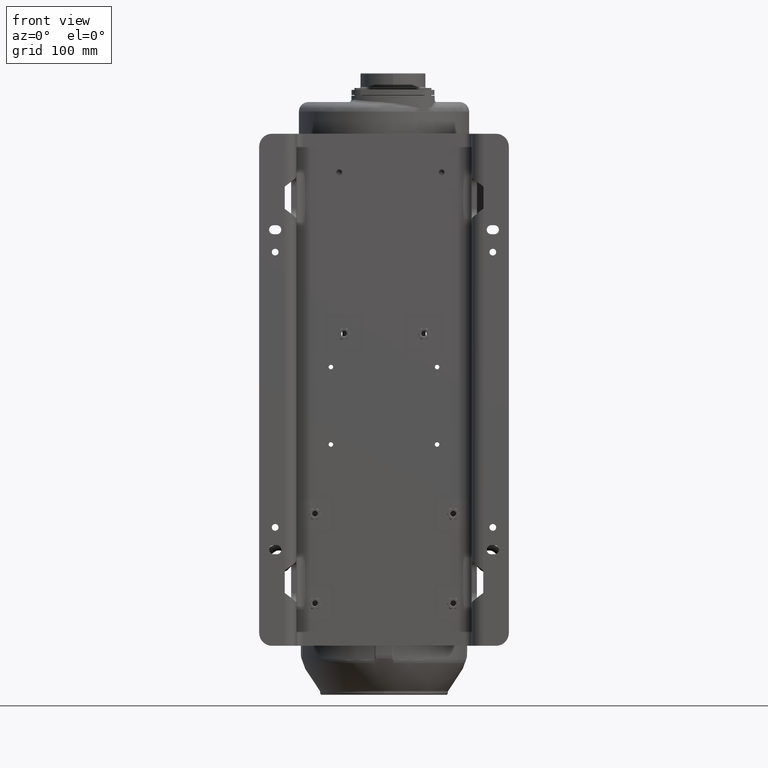
[diagram: clean part render]
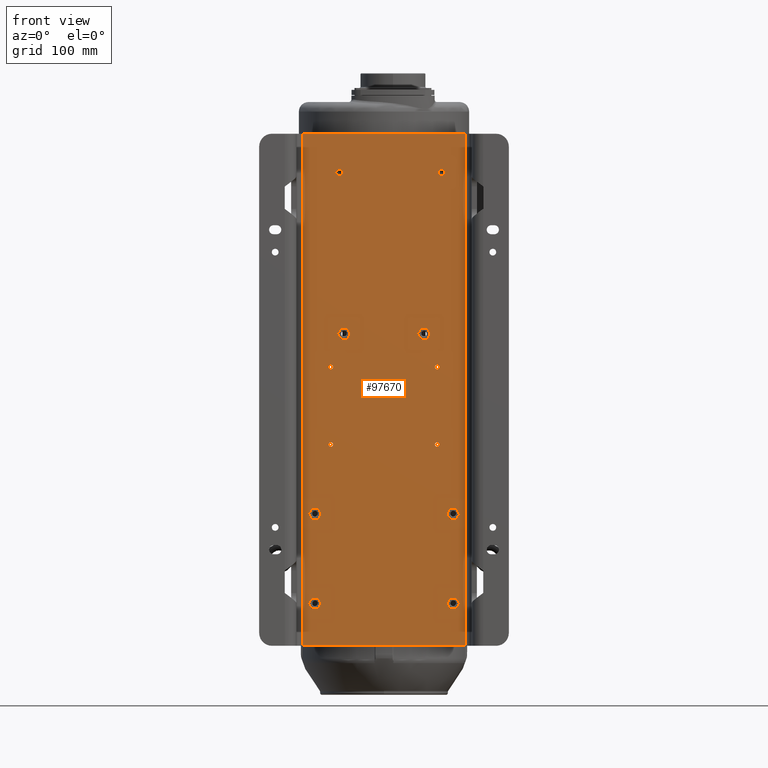
[diagram: same view with one face highlighted and labeled with its STEP entity id]
A machine part, front view. The second image highlights one B-rep face of the part: STEP entity #97670.
In plain terms, the highlighted planar face has unit normal (0, 1, 0).
Its self-contained STEP definition (entity closure, byte-faithful):
#21606=DIRECTION('',(1.E0,0.E0,0.E0));
#21607=VECTOR('',#21606,2.54E2);
#21608=CARTESIAN_POINT('',(-1.27E2,-8.E0,6.05E1));
#21609=LINE('',#21608,#21607);
#21650=DIRECTION('',(1.E0,0.E0,0.E0));
#21651=VECTOR('',#21650,2.54E2);
#21652=CARTESIAN_POINT('',(-1.27E2,-8.E0,-7.395E2));
#21653=LINE('',#21652,#21651);
#21690=DIRECTION('',(0.E0,0.E0,-1.E0));
#21691=VECTOR('',#21690,8.E2);
#21692=CARTESIAN_POINT('',(-1.27E2,-8.E0,6.05E1));
#21693=LINE('',#21692,#21691);
#21694=CARTESIAN_POINT('',(9.E1,-8.E0,0.E0));
#21695=DIRECTION('',(0.E0,-1.E0,0.E0));
#21696=DIRECTION('',(1.E0,0.E0,0.E0));
#21697=AXIS2_PLACEMENT_3D('',#21694,#21695,#21696);
#21699=CARTESIAN_POINT('',(9.E1,-8.E0,0.E0));
#21700=DIRECTION('',(0.E0,-1.E0,0.E0));
#21701=DIRECTION('',(-1.E0,0.E0,0.E0));
#21702=AXIS2_PLACEMENT_3D('',#21699,#21700,#21701);
#21704=CARTESIAN_POINT('',(-7.E1,-8.E0,0.E0));
#21705=DIRECTION('',(0.E0,-1.E0,0.E0));
#21706=DIRECTION('',(1.E0,0.E0,0.E0));
#21707=AXIS2_PLACEMENT_3D('',#21704,#21705,#21706);
#21709=CARTESIAN_POINT('',(-7.E1,-8.E0,0.E0));
#21710=DIRECTION('',(0.E0,-1.E0,0.E0));
#21711=DIRECTION('',(-1.E0,0.E0,0.E0));
#21712=AXIS2_PLACEMENT_3D('',#21709,#21710,#21711);
#21714=CARTESIAN_POINT('',(-8.3E1,-8.E0,-3.04E2));
#21715=DIRECTION('',(0.E0,1.E0,0.E0));
#21716=DIRECTION('',(1.E0,0.E0,0.E0));
#21717=AXIS2_PLACEMENT_3D('',#21714,#21715,#21716);
#21719=CARTESIAN_POINT('',(-8.3E1,-8.E0,-3.04E2));
#21720=DIRECTION('',(0.E0,1.E0,0.E0));
#21721=DIRECTION('',(-1.E0,0.E0,0.E0));
#21722=AXIS2_PLACEMENT_3D('',#21719,#21720,#21721);
#21724=CARTESIAN_POINT('',(8.3E1,-8.E0,-3.04E2));
#21725=DIRECTION('',(0.E0,1.E0,0.E0));
#21726=DIRECTION('',(1.E0,0.E0,0.E0));
#21727=AXIS2_PLACEMENT_3D('',#21724,#21725,#21726);
#21729=CARTESIAN_POINT('',(8.3E1,-8.E0,-3.04E2));
#21730=DIRECTION('',(0.E0,1.E0,0.E0));
#21731=DIRECTION('',(-1.E0,0.E0,0.E0));
#21732=AXIS2_PLACEMENT_3D('',#21729,#21730,#21731);
#21734=CARTESIAN_POINT('',(-8.3E1,-8.E0,-4.25E2));
#21735=DIRECTION('',(0.E0,1.E0,0.E0));
#21736=DIRECTION('',(1.E0,0.E0,0.E0));
#21737=AXIS2_PLACEMENT_3D('',#21734,#21735,#21736);
#21739=CARTESIAN_POINT('',(-8.3E1,-8.E0,-4.25E2));
#21740=DIRECTION('',(0.E0,1.E0,0.E0));
#21741=DIRECTION('',(-1.E0,0.E0,0.E0));
#21742=AXIS2_PLACEMENT_3D('',#21739,#21740,#21741);
#21744=CARTESIAN_POINT('',(8.3E1,-8.E0,-4.25E2));
#21745=DIRECTION('',(0.E0,1.E0,0.E0));
#21746=DIRECTION('',(1.E0,0.E0,0.E0));
#21747=AXIS2_PLACEMENT_3D('',#21744,#21745,#21746);
#21749=CARTESIAN_POINT('',(8.3E1,-8.E0,-4.25E2));
#21750=DIRECTION('',(0.E0,1.E0,0.E0));
#21751=DIRECTION('',(-1.E0,0.E0,0.E0));
#21752=AXIS2_PLACEMENT_3D('',#21749,#21750,#21751);
#21754=DIRECTION('',(-5.E-1,0.E0,8.660254037844E-1));
#21755=VECTOR('',#21754,3.305379941013E0);
#21756=CARTESIAN_POINT('',(7.231495457622E1,-8.E0,-2.52E2));
#21757=LINE('',#21756,#21755);
#21758=DIRECTION('',(0.E0,0.E0,-1.E0));
#21759=VECTOR('',#21758,2.992884317443E-1);
#21760=CARTESIAN_POINT('',(7.066226460572E1,-8.E0,-2.491374570019E2));
#21761=LINE('',#21760,#21759);
#21762=CARTESIAN_POINT('',(6.25E1,-8.E0,-2.52E2));
#21763=DIRECTION('',(0.E0,-1.E0,0.E0));
#21764=DIRECTION('',(9.540615154672E-1,0.E0,2.996107886984E-1));
#21765=AXIS2_PLACEMENT_3D('',#21762,#21763,#21764);
#21767=DIRECTION('',(-5.E-1,0.E0,8.660254037844E-1));
#21768=VECTOR('',#21767,1.941996360002E0);
#21769=CARTESIAN_POINT('',(7.034671502217E1,-8.E0,-2.485909090909E2));
#21770=LINE('',#21769,#21768);
#21771=CARTESIAN_POINT('',(6.25E1,-8.E0,-2.52E2));
#21772=DIRECTION('',(0.E0,-1.E0,0.E0));
#21773=DIRECTION('',(8.036809815951E-1,0.E0,5.950604001464E-1));
#21774=AXIS2_PLACEMENT_3D('',#21771,#21772,#21773);
#21776=DIRECTION('',(-1.E0,0.E0,0.E0));
#21777=VECTOR('',#21776,1.941996360002E0);
#21778=CARTESIAN_POINT('',(6.347099818E1,-8.E0,-2.435E2));
#21779=LINE('',#21778,#21777);
#21780=CARTESIAN_POINT('',(6.25E1,-8.E0,-2.52E2));
#21781=DIRECTION('',(0.E0,-1.E0,0.E0));
#21782=DIRECTION('',(-1.134969325154E-1,0.E0,9.935383466729E-1));
#21783=AXIS2_PLACEMENT_3D('',#21780,#21781,#21782);
#21785=DIRECTION('',(8.660254037845E-1,0.E0,4.999999999999E-1));
#21786=VECTOR('',#21785,2.992884317445E-1);
#21787=CARTESIAN_POINT('',(6.063871126795E1,-8.E0,-2.436496442159E2));
#21788=LINE('',#21787,#21786);
#21789=DIRECTION('',(-1.E0,0.E0,0.E0));
#21790=VECTOR('',#21789,3.305379941013E0);
#21791=CARTESIAN_POINT('',(6.089790265290E1,-8.E0,-2.435E2));
#21792=LINE('',#21791,#21790);
#21793=DIRECTION('',(-5.E-1,0.E0,-8.660254037844E-1));
#21794=VECTOR('',#21793,3.305379941013E0);
#21795=CARTESIAN_POINT('',(5.759252271189E1,-8.E0,-2.435E2));
#21796=LINE('',#21795,#21794);
#21797=DIRECTION('',(8.660254037843E-1,0.E0,5.000000000002E-1));
#21798=VECTOR('',#21797,2.992884317444E-1);
#21799=CARTESIAN_POINT('',(5.593983274138E1,-8.E0,-2.463625429981E2));
#21800=LINE('',#21799,#21798);
#21801=CARTESIAN_POINT('',(6.25E1,-8.E0,-2.52E2));
#21802=DIRECTION('',(0.E0,-1.E0,0.E0));
#21803=DIRECTION('',(-7.365013119943E-1,0.E0,6.764361148185E-1));
#21804=AXIS2_PLACEMENT_3D('',#21801,#21802,#21803);
#21806=DIRECTION('',(-5.E-1,0.E0,-8.660254037844E-1));
#21807=VECTOR('',#21806,1.941996360002E0);
#21808=CARTESIAN_POINT('',(5.562428315783E1,-8.E0,-2.469090909091E2));
#21809=LINE('',#21808,#21807);
#21810=CARTESIAN_POINT('',(6.25E1,-8.E0,-2.52E2));
#21811=DIRECTION('',(0.E0,-1.E0,0.E0));
#21812=DIRECTION('',(-9.171779141104E-1,0.E0,3.984779465266E-1));
#21813=AXIS2_PLACEMENT_3D('',#21810,#21811,#21812);
#21815=DIRECTION('',(5.E-1,0.E0,-8.660254037844E-1));
#21816=VECTOR('',#21815,1.941996360002E0);
#21817=CARTESIAN_POINT('',(5.465328497783E1,-8.E0,-2.554090909091E2));
#21818=LINE('',#21817,#21816);
#21819=CARTESIAN_POINT('',(6.25E1,-8.E0,-2.52E2));
#21820=DIRECTION('',(0.E0,-1.E0,0.E0));
#21821=DIRECTION('',(-8.036809815951E-1,0.E0,-5.950604001464E-1));
#21822=AXIS2_PLACEMENT_3D('',#21819,#21820,#21821);
#21824=DIRECTION('',(-8.660254037843E-1,-1.187053458128E-14,5.000000000002E-1));
#21825=VECTOR('',#21824,2.992884317445E-1);
#21826=CARTESIAN_POINT('',(5.619902412633E1,-8.E0,-2.577871012178E2));
#21827=LINE('',#21826,#21825);
#21828=DIRECTION('',(5.E-1,0.E0,-8.660254037844E-1));
#21829=VECTOR('',#21828,3.305379941013E0);
#21830=CARTESIAN_POINT('',(5.593983274138E1,-8.E0,-2.576374570019E2));
#21831=LINE('',#21830,#21829);
#21832=DIRECTION('',(1.E0,0.E0,0.E0));
#21833=VECTOR('',#21832,3.305379941013E0);
#21834=CARTESIAN_POINT('',(5.759252271189E1,-8.E0,-2.605E2));
#21835=LINE('',#21834,#21833);
#21836=DIRECTION('',(-8.660254037845E-1,2.374106916257E-14,4.999999999999E-1));
#21837=VECTOR('',#21836,2.992884317444E-1);
#21838=CARTESIAN_POINT('',(6.089790265290E1,-8.E0,-2.605E2));
#21839=LINE('',#21838,#21837);
#21840=CARTESIAN_POINT('',(6.25E1,-8.E0,-2.52E2));
#21841=DIRECTION('',(0.E0,-1.E0,0.E0));
#21842=DIRECTION('',(-2.175602034729E-1,0.E0,-9.760469035168E-1));
#21843=AXIS2_PLACEMENT_3D('',#21840,#21841,#21842);
#21845=DIRECTION('',(1.E0,0.E0,0.E0));
#21846=VECTOR('',#21845,1.941996360002E0);
#21847=CARTESIAN_POINT('',(6.152900182E1,-8.E0,-2.605E2));
#21848=LINE('',#21847,#21846);
#21849=CARTESIAN_POINT('',(6.25E1,-8.E0,-2.52E2));
#21850=DIRECTION('',(0.E0,-1.E0,0.E0));
#21851=DIRECTION('',(1.134969325153E-1,0.E0,-9.935383466729E-1));
#21852=AXIS2_PLACEMENT_3D('',#21849,#21850,#21851);
#21854=DIRECTION('',(5.E-1,0.E0,8.660254037844E-1));
#21855=VECTOR('',#21854,1.941996360002E0);
#21856=CARTESIAN_POINT('',(6.937571684217E1,-8.E0,-2.570909090909E2));
#21857=LINE('',#21856,#21855);
#21858=CARTESIAN_POINT('',(6.25E1,-8.E0,-2.52E2));
#21859=DIRECTION('',(0.E0,-1.E0,0.E0));
#21860=DIRECTION('',(9.171779141104E-1,0.E0,-3.984779465266E-1));
#21861=AXIS2_PLACEMENT_3D('',#21858,#21859,#21860);
#21863=DIRECTION('',(0.E0,0.E0,-1.E0));
#21864=VECTOR('',#21863,2.992884317444E-1);
#21865=CARTESIAN_POINT('',(7.066226460572E1,-8.E0,-2.545632545663E2));
#21866=LINE('',#21865,#21864);
#21867=DIRECTION('',(5.E-1,0.E0,8.660254037844E-1));
#21868=VECTOR('',#21867,3.305379941013E0);
#21869=CARTESIAN_POINT('',(7.066226460572E1,-8.E0,-2.548625429981E2));
#21870=LINE('',#21869,#21868);
#21871=DIRECTION('',(-5.E-1,0.E0,8.660254037844E-1));
#21872=VECTOR('',#21871,3.305379941013E0);
#21873=CARTESIAN_POINT('',(-5.268504542378E1,-8.E0,-2.52E2));
#21874=LINE('',#21873,#21872);
#21875=DIRECTION('',(0.E0,0.E0,-1.E0));
#21876=VECTOR('',#21875,2.992884317444E-1);
#21877=CARTESIAN_POINT('',(-5.433773539428E1,-8.E0,-2.491374570019E2));
#21878=LINE('',#21877,#21876);
#21879=CARTESIAN_POINT('',(-6.25E1,-8.E0,-2.52E2));
#21880=DIRECTION('',(0.E0,-1.E0,0.E0));
#21881=DIRECTION('',(9.540615154672E-1,0.E0,2.996107886984E-1));
#21882=AXIS2_PLACEMENT_3D('',#21879,#21880,#21881);
#21884=DIRECTION('',(-5.E-1,0.E0,8.660254037844E-1));
#21885=VECTOR('',#21884,1.941996360002E0);
#21886=CARTESIAN_POINT('',(-5.465328497783E1,-8.E0,-2.485909090909E2));
#21887=LINE('',#21886,#21885);
#21888=CARTESIAN_POINT('',(-6.25E1,-8.E0,-2.52E2));
#21889=DIRECTION('',(0.E0,-1.E0,0.E0));
#21890=DIRECTION('',(8.036809815951E-1,0.E0,5.950604001464E-1));
#21891=AXIS2_PLACEMENT_3D('',#21888,#21889,#21890);
#21893=DIRECTION('',(-1.E0,0.E0,0.E0));
#21894=VECTOR('',#21893,1.941996360002E0);
#21895=CARTESIAN_POINT('',(-6.152900182E1,-8.E0,-2.435E2));
#21896=LINE('',#21895,#21894);
#21897=CARTESIAN_POINT('',(-6.25E1,-8.E0,-2.52E2));
#21898=DIRECTION('',(0.E0,-1.E0,0.E0));
#21899=DIRECTION('',(-1.134969325154E-1,0.E0,9.935383466729E-1));
#21900=AXIS2_PLACEMENT_3D('',#21897,#21898,#21899);
#21902=DIRECTION('',(8.660254037844E-1,2.374106916258E-14,5.000000000001E-1));
#21903=VECTOR('',#21902,2.992884317443E-1);
#21904=CARTESIAN_POINT('',(-6.436128873205E1,-8.E0,-2.436496442159E2));
#21905=LINE('',#21904,#21903);
#21906=DIRECTION('',(-1.E0,0.E0,0.E0));
#21907=VECTOR('',#21906,3.305379941013E0);
#21908=CARTESIAN_POINT('',(-6.410209734710E1,-8.E0,-2.435E2));
#21909=LINE('',#21908,#21907);
#21910=DIRECTION('',(-5.E-1,0.E0,-8.660254037844E-1));
#21911=VECTOR('',#21910,3.305379941013E0);
#21912=CARTESIAN_POINT('',(-6.740747728811E1,-8.E0,-2.435E2));
#21913=LINE('',#21912,#21911);
#21914=DIRECTION('',(8.660254037845E-1,-2.374106916257E-14,5.E-1));
#21915=VECTOR('',#21914,2.992884317444E-1);
#21916=CARTESIAN_POINT('',(-6.906016725862E1,-8.E0,-2.463625429981E2));
#21917=LINE('',#21916,#21915);
#21918=CARTESIAN_POINT('',(-6.25E1,-8.E0,-2.52E2));
#21919=DIRECTION('',(0.E0,-1.E0,0.E0));
#21920=DIRECTION('',(-7.365013119943E-1,0.E0,6.764361148185E-1));
#21921=AXIS2_PLACEMENT_3D('',#21918,#21919,#21920);
#21923=DIRECTION('',(-5.E-1,0.E0,-8.660254037845E-1));
#21924=VECTOR('',#21923,1.941996360002E0);
#21925=CARTESIAN_POINT('',(-6.937571684217E1,-8.E0,-2.469090909091E2));
#21926=LINE('',#21925,#21924);
#21927=CARTESIAN_POINT('',(-6.25E1,-8.E0,-2.52E2));
#21928=DIRECTION('',(0.E0,-1.E0,0.E0));
#21929=DIRECTION('',(-9.171779141104E-1,0.E0,3.984779465266E-1));
#21930=AXIS2_PLACEMENT_3D('',#21927,#21928,#21929);
#21932=DIRECTION('',(5.E-1,0.E0,-8.660254037844E-1));
#21933=VECTOR('',#21932,1.941996360002E0);
#21934=CARTESIAN_POINT('',(-7.034671502217E1,-8.E0,-2.554090909091E2));
#21935=LINE('',#21934,#21933);
#21936=CARTESIAN_POINT('',(-6.25E1,-8.E0,-2.52E2));
#21937=DIRECTION('',(0.E0,-1.E0,0.E0));
#21938=DIRECTION('',(-8.036809815951E-1,0.E0,-5.950604001464E-1));
#21939=AXIS2_PLACEMENT_3D('',#21936,#21937,#21938);
#21941=DIRECTION('',(-8.660254037845E-1,1.780580187193E-14,4.999999999999E-1));
#21942=VECTOR('',#21941,2.992884317444E-1);
#21943=CARTESIAN_POINT('',(-6.880097587367E1,-8.E0,-2.577871012178E2));
#21944=LINE('',#21943,#21942);
#21945=DIRECTION('',(5.E-1,0.E0,-8.660254037844E-1));
#21946=VECTOR('',#21945,3.305379941013E0);
#21947=CARTESIAN_POINT('',(-6.906016725862E1,-8.E0,-2.576374570019E2));
#21948=LINE('',#21947,#21946);
#21949=DIRECTION('',(1.E0,0.E0,0.E0));
#21950=VECTOR('',#21949,3.305379941013E0);
#21951=CARTESIAN_POINT('',(-6.740747728811E1,-8.E0,-2.605E2));
#21952=LINE('',#21951,#21950);
#21953=DIRECTION('',(-8.660254037844E-1,-1.780580187193E-14,5.000000000001E-1));
#21954=VECTOR('',#21953,2.992884317443E-1);
#21955=CARTESIAN_POINT('',(-6.410209734710E1,-8.E0,-2.605E2));
#21956=LINE('',#21955,#21954);
#21957=CARTESIAN_POINT('',(-6.25E1,-8.E0,-2.52E2));
#21958=DIRECTION('',(0.E0,-1.E0,0.E0));
#21959=DIRECTION('',(-2.175602034729E-1,0.E0,-9.760469035168E-1));
#21960=AXIS2_PLACEMENT_3D('',#21957,#21958,#21959);
#21962=DIRECTION('',(1.E0,0.E0,0.E0));
#21963=VECTOR('',#21962,1.941996360002E0);
#21964=CARTESIAN_POINT('',(-6.347099818E1,-8.E0,-2.605E2));
#21965=LINE('',#21964,#21963);
#21966=CARTESIAN_POINT('',(-6.25E1,-8.E0,-2.52E2));
#21967=DIRECTION('',(0.E0,-1.E0,0.E0));
#21968=DIRECTION('',(1.134969325154E-1,0.E0,-9.935383466729E-1));
#21969=AXIS2_PLACEMENT_3D('',#21966,#21967,#21968);
#21971=DIRECTION('',(5.E-1,0.E0,8.660254037844E-1));
#21972=VECTOR('',#21971,1.941996360002E0);
#21973=CARTESIAN_POINT('',(-5.562428315783E1,-8.E0,-2.570909090909E2));
#21974=LINE('',#21973,#21972);
#21975=CARTESIAN_POINT('',(-6.25E1,-8.E0,-2.52E2));
#21976=DIRECTION('',(0.E0,-1.E0,0.E0));
#21977=DIRECTION('',(9.171779141104E-1,0.E0,-3.984779465266E-1));
#21978=AXIS2_PLACEMENT_3D('',#21975,#21976,#21977);
#21980=DIRECTION('',(0.E0,-1.187053458129E-14,-1.E0));
#21981=VECTOR('',#21980,2.992884317444E-1);
#21982=CARTESIAN_POINT('',(-5.433773539428E1,-8.E0,-2.545632545663E2));
#21983=LINE('',#21982,#21981);
#21984=DIRECTION('',(5.E-1,0.E0,8.660254037844E-1));
#21985=VECTOR('',#21984,3.305379941013E0);
#21986=CARTESIAN_POINT('',(-5.433773539428E1,-8.E0,-2.548625429981E2));
#21987=LINE('',#21986,#21985);
#21988=DIRECTION('',(-5.E-1,0.E0,8.660254037844E-1));
#21989=VECTOR('',#21988,3.305379941013E0);
#21990=CARTESIAN_POINT('',(1.178149545762E2,-8.E0,-5.335E2));
#21991=LINE('',#21990,#21989);
#21992=DIRECTION('',(0.E0,-2.967633645323E-14,-1.E0));
#21993=VECTOR('',#21992,2.992884317442E-1);
#21994=CARTESIAN_POINT('',(1.161622646057E2,-8.E0,-5.306374570019E2));
#21995=LINE('',#21994,#21993);
#21996=CARTESIAN_POINT('',(1.08E2,-8.E0,-5.335E2));
#21997=DIRECTION('',(0.E0,-1.E0,0.E0));
#21998=DIRECTION('',(9.540615154672E-1,0.E0,2.996107886984E-1));
#21999=AXIS2_PLACEMENT_3D('',#21996,#21997,#21998);
#22001=DIRECTION('',(-5.E-1,0.E0,8.660254037844E-1));
#22002=VECTOR('',#22001,1.941996360001E0);
#22003=CARTESIAN_POINT('',(1.158467150222E2,-8.E0,-5.300909090909E2));
#22004=LINE('',#22003,#22002);
#22005=CARTESIAN_POINT('',(1.08E2,-8.E0,-5.335E2));
#22006=DIRECTION('',(0.E0,-1.E0,0.E0));
#22007=DIRECTION('',(8.036809815951E-1,0.E0,5.950604001463E-1));
#22008=AXIS2_PLACEMENT_3D('',#22005,#22006,#22007);
#22010=DIRECTION('',(-1.E0,0.E0,0.E0));
#22011=VECTOR('',#22010,1.941996360002E0);
#22012=CARTESIAN_POINT('',(1.089709981800E2,-8.E0,-5.25E2));
#22013=LINE('',#22012,#22011);
#22014=CARTESIAN_POINT('',(1.08E2,-8.E0,-5.335E2));
#22015=DIRECTION('',(0.E0,-1.E0,0.E0));
#22016=DIRECTION('',(-1.134969325154E-1,0.E0,9.935383466729E-1));
#22017=AXIS2_PLACEMENT_3D('',#22014,#22015,#22016);
#22019=DIRECTION('',(8.660254037846E-1,2.374106916258E-14,4.999999999997E-1));
#22020=VECTOR('',#22019,2.992884317443E-1);
#22021=CARTESIAN_POINT('',(1.061387112680E2,-8.E0,-5.251496442159E2));
#22022=LINE('',#22021,#22020);
#22023=DIRECTION('',(-1.E0,0.E0,0.E0));
#22024=VECTOR('',#22023,3.305379941013E0);
#22025=CARTESIAN_POINT('',(1.063979026529E2,-8.E0,-5.25E2));
#22026=LINE('',#22025,#22024);
#22027=DIRECTION('',(-5.E-1,0.E0,-8.660254037844E-1));
#22028=VECTOR('',#22027,3.305379941013E0);
#22029=CARTESIAN_POINT('',(1.030925227119E2,-8.E0,-5.25E2));
#22030=LINE('',#22029,#22028);
#22031=DIRECTION('',(8.660254037844E-1,-2.374106916258E-14,5.E-1));
#22032=VECTOR('',#22031,2.992884317443E-1);
#22033=CARTESIAN_POINT('',(1.014398327414E2,-8.E0,-5.278625429981E2));
#22034=LINE('',#22033,#22032);
#22035=CARTESIAN_POINT('',(1.08E2,-8.E0,-5.335E2));
#22036=DIRECTION('',(0.E0,-1.E0,0.E0));
#22037=DIRECTION('',(-7.365013119943E-1,0.E0,6.764361148185E-1));
#22038=AXIS2_PLACEMENT_3D('',#22035,#22036,#22037);
#22040=DIRECTION('',(-5.E-1,0.E0,-8.660254037844E-1));
#22041=VECTOR('',#22040,1.941996360001E0);
#22042=CARTESIAN_POINT('',(1.011242831578E2,-8.E0,-5.284090909091E2));
#22043=LINE('',#22042,#22041);
#22044=CARTESIAN_POINT('',(1.08E2,-8.E0,-5.335E2));
#22045=DIRECTION('',(0.E0,-1.E0,0.E0));
#22046=DIRECTION('',(-9.171779141104E-1,0.E0,3.984779465266E-1));
#22047=AXIS2_PLACEMENT_3D('',#22044,#22045,#22046);
#22049=DIRECTION('',(5.E-1,0.E0,-8.660254037844E-1));
#22050=VECTOR('',#22049,1.941996360002E0);
#22051=CARTESIAN_POINT('',(1.001532849778E2,-8.E0,-5.369090909091E2));
#22052=LINE('',#22051,#22050);
#22053=CARTESIAN_POINT('',(1.08E2,-8.E0,-5.335E2));
#22054=DIRECTION('',(0.E0,-1.E0,0.E0));
#22055=DIRECTION('',(-8.036809815951E-1,0.E0,-5.950604001463E-1));
#22056=AXIS2_PLACEMENT_3D('',#22053,#22054,#22055);
#22058=DIRECTION('',(-8.660254037845E-1,-3.561160374386E-14,4.999999999999E-1));
#22059=VECTOR('',#22058,2.992884317444E-1);
#22060=CARTESIAN_POINT('',(1.016990241263E2,-8.E0,-5.392871012178E2));
#22061=LINE('',#22060,#22059);
#22062=DIRECTION('',(5.E-1,0.E0,-8.660254037844E-1));
#22063=VECTOR('',#22062,3.305379941013E0);
#22064=CARTESIAN_POINT('',(1.014398327414E2,-8.E0,-5.391374570019E2));
#22065=LINE('',#22064,#22063);
#22066=DIRECTION('',(1.E0,0.E0,0.E0));
#22067=VECTOR('',#22066,3.305379941013E0);
#22068=CARTESIAN_POINT('',(1.030925227119E2,-8.E0,-5.42E2));
#22069=LINE('',#22068,#22067);
#22070=DIRECTION('',(-8.660254037843E-1,0.E0,5.000000000003E-1));
#22071=VECTOR('',#22070,2.992884317444E-1);
#22072=CARTESIAN_POINT('',(1.063979026529E2,-8.E0,-5.42E2));
#22073=LINE('',#22072,#22071);
#22074=CARTESIAN_POINT('',(1.08E2,-8.E0,-5.335E2));
#22075=DIRECTION('',(0.E0,-1.E0,0.E0));
#22076=DIRECTION('',(-2.175602034729E-1,0.E0,-9.760469035168E-1));
#22077=AXIS2_PLACEMENT_3D('',#22074,#22075,#22076);
#22079=DIRECTION('',(1.E0,0.E0,0.E0));
#22080=VECTOR('',#22079,1.941996360002E0);
#22081=CARTESIAN_POINT('',(1.070290018200E2,-8.E0,-5.42E2));
#22082=LINE('',#22081,#22080);
#22083=CARTESIAN_POINT('',(1.08E2,-8.E0,-5.335E2));
#22084=DIRECTION('',(0.E0,-1.E0,0.E0));
#22085=DIRECTION('',(1.134969325153E-1,0.E0,-9.935383466729E-1));
#22086=AXIS2_PLACEMENT_3D('',#22083,#22084,#22085);
#22088=DIRECTION('',(5.E-1,0.E0,8.660254037844E-1));
#22089=VECTOR('',#22088,1.941996360001E0);
#22090=CARTESIAN_POINT('',(1.148757168422E2,-8.E0,-5.385909090909E2));
#22091=LINE('',#22090,#22089);
#22092=CARTESIAN_POINT('',(1.08E2,-8.E0,-5.335E2));
#22093=DIRECTION('',(0.E0,-1.E0,0.E0));
#22094=DIRECTION('',(9.171779141104E-1,0.E0,-3.984779465266E-1));
#22095=AXIS2_PLACEMENT_3D('',#22092,#22093,#22094);
#22097=DIRECTION('',(0.E0,0.E0,-1.E0));
#22098=VECTOR('',#22097,2.992884317443E-1);
#22099=CARTESIAN_POINT('',(1.161622646057E2,-8.E0,-5.360632545663E2));
#22100=LINE('',#22099,#22098);
#22101=DIRECTION('',(5.E-1,0.E0,8.660254037844E-1));
#22102=VECTOR('',#22101,3.305379941013E0);
#22103=CARTESIAN_POINT('',(1.161622646057E2,-8.E0,-5.363625429981E2));
#22104=LINE('',#22103,#22102);
#22105=DIRECTION('',(-5.E-1,0.E0,8.660254037844E-1));
#22106=VECTOR('',#22105,3.305379941013E0);
#22107=CARTESIAN_POINT('',(-9.818504542378E1,-8.E0,-5.335E2));
#22108=LINE('',#22107,#22106);
#22109=DIRECTION('',(-1.424464149756E-13,-2.077343551727E-14,-1.E0));
#22110=VECTOR('',#22109,2.992884317441E-1);
#22111=CARTESIAN_POINT('',(-9.983773539428E1,-8.E0,-5.306374570019E2));
#22112=LINE('',#22111,#22110);
#22113=CARTESIAN_POINT('',(-1.08E2,-8.E0,-5.335E2));
#22114=DIRECTION('',(0.E0,-1.E0,0.E0));
#22115=DIRECTION('',(9.540615154672E-1,0.E0,2.996107886984E-1));
#22116=AXIS2_PLACEMENT_3D('',#22113,#22114,#22115);
#22118=DIRECTION('',(-5.E-1,0.E0,8.660254037844E-1));
#22119=VECTOR('',#22118,1.941996360001E0);
#22120=CARTESIAN_POINT('',(-1.001532849778E2,-8.E0,-5.300909090909E2));
#22121=LINE('',#22120,#22119);
#22122=CARTESIAN_POINT('',(-1.08E2,-8.E0,-5.335E2));
#22123=DIRECTION('',(0.E0,-1.E0,0.E0));
#22124=DIRECTION('',(8.036809815951E-1,0.E0,5.950604001463E-1));
#22125=AXIS2_PLACEMENT_3D('',#22122,#22123,#22124);
#22127=DIRECTION('',(-1.E0,0.E0,0.E0));
#22128=VECTOR('',#22127,1.941996360002E0);
#22129=CARTESIAN_POINT('',(-1.070290018200E2,-8.E0,-5.25E2));
#22130=LINE('',#22129,#22128);
#22131=CARTESIAN_POINT('',(-1.08E2,-8.E0,-5.335E2));
#22132=DIRECTION('',(0.E0,-1.E0,0.E0));
#22133=DIRECTION('',(-1.134969325154E-1,0.E0,9.935383466729E-1));
#22134=AXIS2_PLACEMENT_3D('',#22131,#22132,#22133);
#22136=DIRECTION('',(8.660254037847E-1,0.E0,4.999999999996E-1));
#22137=VECTOR('',#22136,2.992884317443E-1);
#22138=CARTESIAN_POINT('',(-1.098612887320E2,-8.E0,-5.251496442159E2));
#22139=LINE('',#22138,#22137);
#22140=DIRECTION('',(-1.E0,0.E0,0.E0));
#22141=VECTOR('',#22140,3.305379941013E0);
#22142=CARTESIAN_POINT('',(-1.096020973471E2,-8.E0,-5.25E2));
#22143=LINE('',#22142,#22141);
#22144=DIRECTION('',(-5.E-1,0.E0,-8.660254037844E-1));
#22145=VECTOR('',#22144,3.305379941013E0);
#22146=CARTESIAN_POINT('',(-1.129074772881E2,-8.E0,-5.25E2));
#22147=LINE('',#22146,#22145);
#22148=DIRECTION('',(8.660254037844E-1,0.E0,5.E-1));
#22149=VECTOR('',#22148,2.992884317444E-1);
#22150=CARTESIAN_POINT('',(-1.145601672586E2,-8.E0,-5.278625429981E2));
#22151=LINE('',#22150,#22149);
#22152=CARTESIAN_POINT('',(-1.08E2,-8.E0,-5.335E2));
#22153=DIRECTION('',(0.E0,-1.E0,0.E0));
#22154=DIRECTION('',(-7.365013119943E-1,0.E0,6.764361148185E-1));
#22155=AXIS2_PLACEMENT_3D('',#22152,#22153,#22154);
#22157=DIRECTION('',(-5.E-1,0.E0,-8.660254037844E-1));
#22158=VECTOR('',#22157,1.941996360001E0);
#22159=CARTESIAN_POINT('',(-1.148757168422E2,-8.E0,-5.284090909091E2));
#22160=LINE('',#22159,#22158);
#22161=CARTESIAN_POINT('',(-1.08E2,-8.E0,-5.335E2));
#22162=DIRECTION('',(0.E0,-1.E0,0.E0));
#22163=DIRECTION('',(-9.171779141104E-1,0.E0,3.984779465266E-1));
#22164=AXIS2_PLACEMENT_3D('',#22161,#22162,#22163);
#22166=DIRECTION('',(5.E-1,0.E0,-8.660254037844E-1));
#22167=VECTOR('',#22166,1.941996360001E0);
#22168=CARTESIAN_POINT('',(-1.158467150222E2,-8.E0,-5.369090909091E2));
#22169=LINE('',#22168,#22167);
#22170=CARTESIAN_POINT('',(-1.08E2,-8.E0,-5.335E2));
#22171=DIRECTION('',(0.E0,-1.E0,0.E0));
#22172=DIRECTION('',(-8.036809815951E-1,0.E0,-5.950604001463E-1));
#22173=AXIS2_PLACEMENT_3D('',#22170,#22171,#22172);
#22175=DIRECTION('',(-8.660254037845E-1,-3.561160374386E-14,4.999999999999E-1));
#22176=VECTOR('',#22175,2.992884317444E-1);
#22177=CARTESIAN_POINT('',(-1.143009758737E2,-8.E0,-5.392871012178E2));
#22178=LINE('',#22177,#22176);
#22179=DIRECTION('',(5.E-1,0.E0,-8.660254037844E-1));
#22180=VECTOR('',#22179,3.305379941013E0);
#22181=CARTESIAN_POINT('',(-1.145601672586E2,-8.E0,-5.391374570019E2));
#22182=LINE('',#22181,#22180);
#22183=DIRECTION('',(1.E0,0.E0,0.E0));
#22184=VECTOR('',#22183,3.305379941013E0);
#22185=CARTESIAN_POINT('',(-1.129074772881E2,-8.E0,-5.42E2));
#22186=LINE('',#22185,#22184);
#22187=DIRECTION('',(-8.660254037842E-1,-1.780580187193E-14,5.000000000004E-1));
#22188=VECTOR('',#22187,2.992884317443E-1);
#22189=CARTESIAN_POINT('',(-1.096020973471E2,-8.E0,-5.42E2));
#22190=LINE('',#22189,#22188);
#22191=CARTESIAN_POINT('',(-1.08E2,-8.E0,-5.335E2));
#22192=DIRECTION('',(0.E0,-1.E0,0.E0));
#22193=DIRECTION('',(-2.175602034729E-1,0.E0,-9.760469035168E-1));
#22194=AXIS2_PLACEMENT_3D('',#22191,#22192,#22193);
#22196=DIRECTION('',(1.E0,0.E0,0.E0));
#22197=VECTOR('',#22196,1.941996360001E0);
#22198=CARTESIAN_POINT('',(-1.089709981800E2,-8.E0,-5.42E2));
#22199=LINE('',#22198,#22197);
#22200=CARTESIAN_POINT('',(-1.08E2,-8.E0,-5.335E2));
#22201=DIRECTION('',(0.E0,-1.E0,0.E0));
#22202=DIRECTION('',(1.134969325153E-1,0.E0,-9.935383466729E-1));
#22203=AXIS2_PLACEMENT_3D('',#22200,#22201,#22202);
#22205=DIRECTION('',(5.E-1,0.E0,8.660254037844E-1));
#22206=VECTOR('',#22205,1.941996360002E0);
#22207=CARTESIAN_POINT('',(-1.011242831578E2,-8.E0,-5.385909090909E2));
#22208=LINE('',#22207,#22206);
#22209=CARTESIAN_POINT('',(-1.08E2,-8.E0,-5.335E2));
#22210=DIRECTION('',(0.E0,-1.E0,0.E0));
#22211=DIRECTION('',(9.171779141104E-1,0.E0,-3.984779465266E-1));
#22212=AXIS2_PLACEMENT_3D('',#22209,#22210,#22211);
#22214=DIRECTION('',(1.424464149756E-13,0.E0,-1.E0));
#22215=VECTOR('',#22214,2.992884317441E-1);
#22216=CARTESIAN_POINT('',(-9.983773539428E1,-8.E0,-5.360632545663E2));
#22217=LINE('',#22216,#22215);
#22218=DIRECTION('',(5.E-1,0.E0,8.660254037844E-1));
#22219=VECTOR('',#22218,3.305379941013E0);
#22220=CARTESIAN_POINT('',(-9.983773539428E1,-8.E0,-5.363625429981E2));
#22221=LINE('',#22220,#22219);
#22222=DIRECTION('',(-5.E-1,0.E0,8.660254037844E-1));
#22223=VECTOR('',#22222,3.305379941013E0);
#22224=CARTESIAN_POINT('',(1.178149545762E2,-8.E0,-6.735E2));
#22225=LINE('',#22224,#22223);
#22226=DIRECTION('',(0.E0,0.E0,-1.E0));
#22227=VECTOR('',#22226,2.992884317442E-1);
#22228=CARTESIAN_POINT('',(1.161622646057E2,-8.E0,-6.706374570019E2));
#22229=LINE('',#22228,#22227);
#22230=CARTESIAN_POINT('',(1.08E2,-8.E0,-6.735E2));
#22231=DIRECTION('',(0.E0,-1.E0,0.E0));
#22232=DIRECTION('',(9.540615154672E-1,0.E0,2.996107886984E-1));
#22233=AXIS2_PLACEMENT_3D('',#22230,#22231,#22232);
#22235=DIRECTION('',(-5.E-1,0.E0,8.660254037844E-1));
#22236=VECTOR('',#22235,1.941996360001E0);
#22237=CARTESIAN_POINT('',(1.158467150222E2,-8.E0,-6.700909090909E2));
#22238=LINE('',#22237,#22236);
#22239=CARTESIAN_POINT('',(1.08E2,-8.E0,-6.735E2));
#22240=DIRECTION('',(0.E0,-1.E0,0.E0));
#22241=DIRECTION('',(8.036809815951E-1,0.E0,5.950604001464E-1));
#22242=AXIS2_PLACEMENT_3D('',#22239,#22240,#22241);
#22244=DIRECTION('',(-1.E0,0.E0,0.E0));
#22245=VECTOR('',#22244,1.941996360002E0);
#22246=CARTESIAN_POINT('',(1.089709981800E2,-8.E0,-6.65E2));
#22247=LINE('',#22246,#22245);
#22248=CARTESIAN_POINT('',(1.08E2,-8.E0,-6.735E2));
#22249=DIRECTION('',(0.E0,-1.E0,0.E0));
#22250=DIRECTION('',(-1.134969325154E-1,0.E0,9.935383466729E-1));
#22251=AXIS2_PLACEMENT_3D('',#22248,#22249,#22250);
#22253=DIRECTION('',(8.660254037847E-1,8.012610842368E-14,4.999999999996E-1));
#22254=VECTOR('',#22253,2.992884317444E-1);
#22255=CARTESIAN_POINT('',(1.061387112680E2,-8.E0,-6.651496442159E2));
#22256=LINE('',#22255,#22254);
#22257=DIRECTION('',(-1.E0,0.E0,0.E0));
#22258=VECTOR('',#22257,3.305379941013E0);
#22259=CARTESIAN_POINT('',(1.063979026529E2,-8.E0,-6.65E2));
#22260=LINE('',#22259,#22258);
#22261=DIRECTION('',(-5.E-1,0.E0,-8.660254037844E-1));
#22262=VECTOR('',#22261,3.305379941013E0);
#22263=CARTESIAN_POINT('',(1.030925227119E2,-8.E0,-6.65E2));
#22264=LINE('',#22263,#22262);
#22265=DIRECTION('',(8.660254037845E-1,-7.715847477841E-14,4.999999999999E-1));
#22266=VECTOR('',#22265,2.992884317442E-1);
#22267=CARTESIAN_POINT('',(1.014398327414E2,-8.E0,-6.678625429981E2));
#22268=LINE('',#22267,#22266);
#22269=CARTESIAN_POINT('',(1.08E2,-8.E0,-6.735E2));
#22270=DIRECTION('',(0.E0,-1.E0,0.E0));
#22271=DIRECTION('',(-7.365013119943E-1,0.E0,6.764361148185E-1));
#22272=AXIS2_PLACEMENT_3D('',#22269,#22270,#22271);
#22274=DIRECTION('',(-5.E-1,0.E0,-8.660254037844E-1));
#22275=VECTOR('',#22274,1.941996360002E0);
#22276=CARTESIAN_POINT('',(1.011242831578E2,-8.E0,-6.684090909091E2));
#22277=LINE('',#22276,#22275);
#22278=CARTESIAN_POINT('',(1.08E2,-8.E0,-6.735E2));
#22279=DIRECTION('',(0.E0,-1.E0,0.E0));
#22280=DIRECTION('',(-9.171779141104E-1,0.E0,3.984779465266E-1));
#22281=AXIS2_PLACEMENT_3D('',#22278,#22279,#22280);
#22283=DIRECTION('',(5.E-1,0.E0,-8.660254037844E-1));
#22284=VECTOR('',#22283,1.941996360001E0);
#22285=CARTESIAN_POINT('',(1.001532849778E2,-8.E0,-6.769090909091E2));
#22286=LINE('',#22285,#22284);
#22287=CARTESIAN_POINT('',(1.08E2,-8.E0,-6.735E2));
#22288=DIRECTION('',(0.E0,-1.E0,0.E0));
#22289=DIRECTION('',(-8.036809815951E-1,0.E0,-5.950604001463E-1));
#22290=AXIS2_PLACEMENT_3D('',#22287,#22288,#22289);
#22292=DIRECTION('',(-8.660254037846E-1,1.780580187193E-14,4.999999999997E-1));
#22293=VECTOR('',#22292,2.992884317443E-1);
#22294=CARTESIAN_POINT('',(1.016990241263E2,-8.E0,-6.792871012178E2));
#22295=LINE('',#22294,#22293);
#22296=DIRECTION('',(5.E-1,0.E0,-8.660254037844E-1));
#22297=VECTOR('',#22296,3.305379941013E0);
#22298=CARTESIAN_POINT('',(1.014398327414E2,-8.E0,-6.791374570019E2));
#22299=LINE('',#22298,#22297);
#22300=DIRECTION('',(1.E0,0.E0,0.E0));
#22301=VECTOR('',#22300,3.305379941013E0);
#22302=CARTESIAN_POINT('',(1.030925227119E2,-8.E0,-6.82E2));
#22303=LINE('',#22302,#22301);
#22304=DIRECTION('',(-8.660254037842E-1,-1.780580187193E-14,5.000000000003E-1));
#22305=VECTOR('',#22304,2.992884317444E-1);
#22306=CARTESIAN_POINT('',(1.063979026529E2,-8.E0,-6.82E2));
#22307=LINE('',#22306,#22305);
#22308=CARTESIAN_POINT('',(1.08E2,-8.E0,-6.735E2));
#22309=DIRECTION('',(0.E0,-1.E0,0.E0));
#22310=DIRECTION('',(-2.175602034729E-1,0.E0,-9.760469035168E-1));
#22311=AXIS2_PLACEMENT_3D('',#22308,#22309,#22310);
#22313=DIRECTION('',(1.E0,0.E0,0.E0));
#22314=VECTOR('',#22313,1.941996360001E0);
#22315=CARTESIAN_POINT('',(1.070290018200E2,-8.E0,-6.82E2));
#22316=LINE('',#22315,#22314);
#22317=CARTESIAN_POINT('',(1.08E2,-8.E0,-6.735E2));
#22318=DIRECTION('',(0.E0,-1.E0,0.E0));
#22319=DIRECTION('',(1.134969325153E-1,0.E0,-9.935383466729E-1));
#22320=AXIS2_PLACEMENT_3D('',#22317,#22318,#22319);
#22322=DIRECTION('',(5.E-1,0.E0,8.660254037844E-1));
#22323=VECTOR('',#22322,1.941996360001E0);
#22324=CARTESIAN_POINT('',(1.148757168422E2,-8.E0,-6.785909090909E2));
#22325=LINE('',#22324,#22323);
#22326=CARTESIAN_POINT('',(1.08E2,-8.E0,-6.735E2));
#22327=DIRECTION('',(0.E0,-1.E0,0.E0));
#22328=DIRECTION('',(9.171779141104E-1,0.E0,-3.984779465266E-1));
#22329=AXIS2_PLACEMENT_3D('',#22326,#22327,#22328);
#22331=DIRECTION('',(-9.496427665030E-14,0.E0,-1.E0));
#22332=VECTOR('',#22331,2.992884317443E-1);
#22333=CARTESIAN_POINT('',(1.161622646057E2,-8.E0,-6.760632545663E2));
#22334=LINE('',#22333,#22332);
#22335=DIRECTION('',(5.E-1,0.E0,8.660254037844E-1));
#22336=VECTOR('',#22335,3.305379941013E0);
#22337=CARTESIAN_POINT('',(1.161622646057E2,-8.E0,-6.763625429981E2));
#22338=LINE('',#22337,#22336);
#22339=DIRECTION('',(-5.E-1,0.E0,8.660254037844E-1));
#22340=VECTOR('',#22339,3.305379941013E0);
#22341=CARTESIAN_POINT('',(-9.818504542378E1,-8.E0,-6.735E2));
#22342=LINE('',#22341,#22340);
#22343=DIRECTION('',(-9.496427665037E-14,-2.077343551727E-14,-1.E0));
#22344=VECTOR('',#22343,2.992884317441E-1);
#22345=CARTESIAN_POINT('',(-9.983773539428E1,-8.E0,-6.706374570019E2));
#22346=LINE('',#22345,#22344);
#22347=CARTESIAN_POINT('',(-1.08E2,-8.E0,-6.735E2));
#22348=DIRECTION('',(0.E0,-1.E0,0.E0));
#22349=DIRECTION('',(9.540615154672E-1,0.E0,2.996107886984E-1));
#22350=AXIS2_PLACEMENT_3D('',#22347,#22348,#22349);
#22352=DIRECTION('',(-5.E-1,0.E0,8.660254037844E-1));
#22353=VECTOR('',#22352,1.941996360001E0);
#22354=CARTESIAN_POINT('',(-1.001532849778E2,-8.E0,-6.700909090909E2));
#22355=LINE('',#22354,#22353);
#22356=CARTESIAN_POINT('',(-1.08E2,-8.E0,-6.735E2));
#22357=DIRECTION('',(0.E0,-1.E0,0.E0));
#22358=DIRECTION('',(8.036809815951E-1,0.E0,5.950604001463E-1));
#22359=AXIS2_PLACEMENT_3D('',#22356,#22357,#22358);
#22361=DIRECTION('',(-1.E0,0.E0,0.E0));
#22362=VECTOR('',#22361,1.941996360002E0);
#22363=CARTESIAN_POINT('',(-1.070290018200E2,-8.E0,-6.65E2));
#22364=LINE('',#22363,#22362);
#22365=CARTESIAN_POINT('',(-1.08E2,-8.E0,-6.735E2));
#22366=DIRECTION('',(0.E0,-1.E0,0.E0));
#22367=DIRECTION('',(-1.134969325154E-1,0.E0,9.935383466729E-1));
#22368=AXIS2_PLACEMENT_3D('',#22365,#22366,#22367);
#22370=DIRECTION('',(8.660254037847E-1,2.374106916257E-14,4.999999999996E-1));
#22371=VECTOR('',#22370,2.992884317443E-1);
#22372=CARTESIAN_POINT('',(-1.098612887320E2,-8.E0,-6.651496442159E2));
#22373=LINE('',#22372,#22371);
#22374=DIRECTION('',(-1.E0,0.E0,0.E0));
#22375=VECTOR('',#22374,3.305379941013E0);
#22376=CARTESIAN_POINT('',(-1.096020973471E2,-8.E0,-6.65E2));
#22377=LINE('',#22376,#22375);
#22378=DIRECTION('',(-5.E-1,0.E0,-8.660254037844E-1));
#22379=VECTOR('',#22378,3.305379941013E0);
#22380=CARTESIAN_POINT('',(-1.129074772881E2,-8.E0,-6.65E2));
#22381=LINE('',#22380,#22379);
#22382=DIRECTION('',(8.660254037845E-1,-7.715847477841E-14,4.999999999999E-1));
#22383=VECTOR('',#22382,2.992884317442E-1);
#22384=CARTESIAN_POINT('',(-1.145601672586E2,-8.E0,-6.678625429981E2));
#22385=LINE('',#22384,#22383);
#22386=CARTESIAN_POINT('',(-1.08E2,-8.E0,-6.735E2));
#22387=DIRECTION('',(0.E0,-1.E0,0.E0));
#22388=DIRECTION('',(-7.365013119943E-1,0.E0,6.764361148185E-1));
#22389=AXIS2_PLACEMENT_3D('',#22386,#22387,#22388);
#22391=DIRECTION('',(-5.E-1,0.E0,-8.660254037845E-1));
#22392=VECTOR('',#22391,1.941996360002E0);
#22393=CARTESIAN_POINT('',(-1.148757168422E2,-8.E0,-6.684090909091E2));
#22394=LINE('',#22393,#22392);
#22395=CARTESIAN_POINT('',(-1.08E2,-8.E0,-6.735E2));
#22396=DIRECTION('',(0.E0,-1.E0,0.E0));
#22397=DIRECTION('',(-9.171779141105E-1,0.E0,3.984779465265E-1));
#22398=AXIS2_PLACEMENT_3D('',#22395,#22396,#22397);
#22400=DIRECTION('',(5.E-1,0.E0,-8.660254037844E-1));
#22401=VECTOR('',#22400,1.941996360001E0);
#22402=CARTESIAN_POINT('',(-1.158467150222E2,-8.E0,-6.769090909091E2));
#22403=LINE('',#22402,#22401);
#22404=CARTESIAN_POINT('',(-1.08E2,-8.E0,-6.735E2));
#22405=DIRECTION('',(0.E0,-1.E0,0.E0));
#22406=DIRECTION('',(-8.036809815951E-1,0.E0,-5.950604001464E-1));
#22407=AXIS2_PLACEMENT_3D('',#22404,#22405,#22406);
#22409=DIRECTION('',(-8.660254037847E-1,1.780580187193E-14,4.999999999996E-1));
#22410=VECTOR('',#22409,2.992884317443E-1);
#22411=CARTESIAN_POINT('',(-1.143009758737E2,-8.E0,-6.792871012178E2));
#22412=LINE('',#22411,#22410);
#22413=DIRECTION('',(5.E-1,0.E0,-8.660254037844E-1));
#22414=VECTOR('',#22413,3.305379941013E0);
#22415=CARTESIAN_POINT('',(-1.145601672586E2,-8.E0,-6.791374570019E2));
#22416=LINE('',#22415,#22414);
#22417=DIRECTION('',(1.E0,0.E0,0.E0));
#22418=VECTOR('',#22417,3.305379941014E0);
#22419=CARTESIAN_POINT('',(-1.129074772881E2,-8.E0,-6.82E2));
#22420=LINE('',#22419,#22418);
#22421=DIRECTION('',(-8.660254037844E-1,2.967633645320E-14,5.E-1));
#22422=VECTOR('',#22421,2.992884317445E-1);
#22423=CARTESIAN_POINT('',(-1.096020973471E2,-8.E0,-6.82E2));
#22424=LINE('',#22423,#22422);
#22425=CARTESIAN_POINT('',(-1.08E2,-8.E0,-6.735E2));
#22426=DIRECTION('',(0.E0,-1.E0,0.E0));
#22427=DIRECTION('',(-2.175602034729E-1,0.E0,-9.760469035168E-1));
#22428=AXIS2_PLACEMENT_3D('',#22425,#22426,#22427);
#22430=DIRECTION('',(1.E0,0.E0,0.E0));
#22431=VECTOR('',#22430,1.941996360001E0);
#22432=CARTESIAN_POINT('',(-1.089709981800E2,-8.E0,-6.82E2));
#22433=LINE('',#22432,#22431);
#22434=CARTESIAN_POINT('',(-1.08E2,-8.E0,-6.735E2));
#22435=DIRECTION('',(0.E0,-1.E0,0.E0));
#22436=DIRECTION('',(1.134969325153E-1,0.E0,-9.935383466729E-1));
#22437=AXIS2_PLACEMENT_3D('',#22434,#22435,#22436);
#22439=DIRECTION('',(5.E-1,0.E0,8.660254037844E-1));
#22440=VECTOR('',#22439,1.941996360002E0);
#22441=CARTESIAN_POINT('',(-1.011242831578E2,-8.E0,-6.785909090909E2));
#22442=LINE('',#22441,#22440);
#22443=CARTESIAN_POINT('',(-1.08E2,-8.E0,-6.735E2));
#22444=DIRECTION('',(0.E0,-1.E0,0.E0));
#22445=DIRECTION('',(9.171779141104E-1,0.E0,-3.984779465266E-1));
#22446=AXIS2_PLACEMENT_3D('',#22443,#22444,#22445);
#22448=DIRECTION('',(0.E0,-1.187053458130E-14,-1.E0));
#22449=VECTOR('',#22448,2.992884317441E-1);
#22450=CARTESIAN_POINT('',(-9.983773539428E1,-8.E0,-6.760632545663E2));
#22451=LINE('',#22450,#22449);
#22452=DIRECTION('',(5.E-1,0.E0,8.660254037844E-1));
#22453=VECTOR('',#22452,3.305379941013E0);
#22454=CARTESIAN_POINT('',(-9.983773539428E1,-8.E0,-6.763625429981E2));
#22455=LINE('',#22454,#22453);
#22456=DIRECTION('',(0.E0,0.E0,-1.E0));
#22457=VECTOR('',#22456,8.E2);
#22458=CARTESIAN_POINT('',(1.27E2,-8.E0,6.05E1));
#22459=LINE('',#22458,#22457);
#68745=CARTESIAN_POINT('',(-1.27E2,-8.E0,6.05E1));
#68746=VERTEX_POINT('',#68745);
#68747=CARTESIAN_POINT('',(1.27E2,-8.E0,6.05E1));
#68748=VERTEX_POINT('',#68747);
#68761=CARTESIAN_POINT('',(-1.27E2,-8.E0,-7.395E2));
#68762=VERTEX_POINT('',#68761);
#68763=CARTESIAN_POINT('',(1.27E2,-8.E0,-7.395E2));
#68764=VERTEX_POINT('',#68763);
#69019=CARTESIAN_POINT('',(9.525E1,-8.E0,0.E0));
#69020=CARTESIAN_POINT('',(8.475E1,-8.E0,0.E0));
#69021=VERTEX_POINT('',#69019);
#69022=VERTEX_POINT('',#69020);
#69023=CARTESIAN_POINT('',(-6.475E1,-8.E0,0.E0));
#69024=CARTESIAN_POINT('',(-7.525E1,-8.E0,0.E0));
#69025=VERTEX_POINT('',#69023);
#69026=VERTEX_POINT('',#69024);
#69031=CARTESIAN_POINT('',(-7.95E1,-8.E0,-3.04E2));
#69032=CARTESIAN_POINT('',(-8.65E1,-8.E0,-3.04E2));
#69033=VERTEX_POINT('',#69031);
#69034=VERTEX_POINT('',#69032);
#69039=CARTESIAN_POINT('',(8.65E1,-8.E0,-3.04E2));
#69040=CARTESIAN_POINT('',(7.95E1,-8.E0,-3.04E2));
#69041=VERTEX_POINT('',#69039);
#69042=VERTEX_POINT('',#69040);
#69047=CARTESIAN_POINT('',(-7.95E1,-8.E0,-4.25E2));
#69048=CARTESIAN_POINT('',(-8.65E1,-8.E0,-4.25E2));
#69049=VERTEX_POINT('',#69047);
#69050=VERTEX_POINT('',#69048);
#69055=CARTESIAN_POINT('',(8.65E1,-8.E0,-4.25E2));
#69056=CARTESIAN_POINT('',(7.95E1,-8.E0,-4.25E2));
#69057=VERTEX_POINT('',#69055);
#69058=VERTEX_POINT('',#69056);
#69267=CARTESIAN_POINT('',(7.231495457622E1,-8.E0,-2.52E2));
#69268=CARTESIAN_POINT('',(7.066226460572E1,-8.E0,-2.491374570019E2));
#69269=VERTEX_POINT('',#69267);
#69270=VERTEX_POINT('',#69268);
#69271=CARTESIAN_POINT('',(7.034671502217E1,-8.E0,-2.485909090909E2));
#69272=CARTESIAN_POINT('',(6.937571684217E1,-8.E0,-2.469090909091E2));
#69273=VERTEX_POINT('',#69271);
#69274=VERTEX_POINT('',#69272);
#69275=CARTESIAN_POINT('',(6.347099818E1,-8.E0,-2.435E2));
#69276=CARTESIAN_POINT('',(6.152900182E1,-8.E0,-2.435E2));
#69277=VERTEX_POINT('',#69275);
#69278=VERTEX_POINT('',#69276);
#69279=CARTESIAN_POINT('',(6.089790265290E1,-8.E0,-2.435E2));
#69280=CARTESIAN_POINT('',(5.759252271189E1,-8.E0,-2.435E2));
#69281=VERTEX_POINT('',#69279);
#69282=VERTEX_POINT('',#69280);
#69283=CARTESIAN_POINT('',(5.593983274138E1,-8.E0,-2.463625429981E2));
#69284=VERTEX_POINT('',#69283);
#69285=CARTESIAN_POINT('',(5.562428315783E1,-8.E0,-2.469090909091E2));
#69286=CARTESIAN_POINT('',(5.465328497783E1,-8.E0,-2.485909090909E2));
#69287=VERTEX_POINT('',#69285);
#69288=VERTEX_POINT('',#69286);
#69289=CARTESIAN_POINT('',(5.465328497783E1,-8.E0,-2.554090909091E2));
#69290=CARTESIAN_POINT('',(5.562428315783E1,-8.E0,-2.570909090909E2));
#69291=VERTEX_POINT('',#69289);
#69292=VERTEX_POINT('',#69290);
#69293=CARTESIAN_POINT('',(5.593983274138E1,-8.E0,-2.576374570019E2));
#69294=CARTESIAN_POINT('',(5.759252271189E1,-8.E0,-2.605E2));
#69295=VERTEX_POINT('',#69293);
#69296=VERTEX_POINT('',#69294);
#69297=CARTESIAN_POINT('',(6.089790265290E1,-8.E0,-2.605E2));
#69298=VERTEX_POINT('',#69297);
#69299=CARTESIAN_POINT('',(6.152900182E1,-8.E0,-2.605E2));
#69300=CARTESIAN_POINT('',(6.347099818E1,-8.E0,-2.605E2));
#69301=VERTEX_POINT('',#69299);
#69302=VERTEX_POINT('',#69300);
#69303=CARTESIAN_POINT('',(6.937571684217E1,-8.E0,-2.570909090909E2));
#69304=CARTESIAN_POINT('',(7.034671502217E1,-8.E0,-2.554090909091E2));
#69305=VERTEX_POINT('',#69303);
#69306=VERTEX_POINT('',#69304);
#69307=CARTESIAN_POINT('',(7.066226460572E1,-8.E0,-2.548625429981E2));
#69308=VERTEX_POINT('',#69307);
#69309=CARTESIAN_POINT('',(7.066226460572E1,-8.E0,-2.545632545663E2));
#69310=VERTEX_POINT('',#69309);
#69311=CARTESIAN_POINT('',(7.066226460572E1,-8.E0,-2.494367454337E2));
#69312=VERTEX_POINT('',#69311);
#69313=CARTESIAN_POINT('',(6.063871126795E1,-8.E0,-2.436496442159E2));
#69314=VERTEX_POINT('',#69313);
#69315=CARTESIAN_POINT('',(5.619902412633E1,-8.E0,-2.462128987822E2));
#69316=VERTEX_POINT('',#69315);
#69317=CARTESIAN_POINT('',(5.619902412633E1,-8.E0,-2.577871012178E2));
#69318=VERTEX_POINT('',#69317);
#69319=CARTESIAN_POINT('',(6.063871126795E1,-8.E0,-2.603503557841E2));
#69320=VERTEX_POINT('',#69319);
#69394=CARTESIAN_POINT('',(-5.268504542378E1,-8.E0,-2.52E2));
#69395=CARTESIAN_POINT('',(-5.433773539428E1,-8.E0,-2.491374570019E2));
#69396=VERTEX_POINT('',#69394);
#69397=VERTEX_POINT('',#69395);
#69398=CARTESIAN_POINT('',(-5.465328497783E1,-8.E0,-2.485909090909E2));
#69399=CARTESIAN_POINT('',(-5.562428315783E1,-8.E0,-2.469090909091E2));
#69400=VERTEX_POINT('',#69398);
#69401=VERTEX_POINT('',#69399);
#69402=CARTESIAN_POINT('',(-6.152900182E1,-8.E0,-2.435E2));
#69403=CARTESIAN_POINT('',(-6.347099818E1,-8.E0,-2.435E2));
#69404=VERTEX_POINT('',#69402);
#69405=VERTEX_POINT('',#69403);
#69406=CARTESIAN_POINT('',(-6.410209734710E1,-8.E0,-2.435E2));
#69407=CARTESIAN_POINT('',(-6.740747728811E1,-8.E0,-2.435E2));
#69408=VERTEX_POINT('',#69406);
#69409=VERTEX_POINT('',#69407);
#69410=CARTESIAN_POINT('',(-6.906016725862E1,-8.E0,-2.463625429981E2));
#69411=VERTEX_POINT('',#69410);
#69412=CARTESIAN_POINT('',(-6.937571684217E1,-8.E0,-2.469090909091E2));
#69413=CARTESIAN_POINT('',(-7.034671502217E1,-8.E0,-2.485909090909E2));
#69414=VERTEX_POINT('',#69412);
#69415=VERTEX_POINT('',#69413);
#69416=CARTESIAN_POINT('',(-7.034671502217E1,-8.E0,-2.554090909091E2));
#69417=CARTESIAN_POINT('',(-6.937571684217E1,-8.E0,-2.570909090909E2));
#69418=VERTEX_POINT('',#69416);
#69419=VERTEX_POINT('',#69417);
#69420=CARTESIAN_POINT('',(-6.906016725862E1,-8.E0,-2.576374570019E2));
#69421=CARTESIAN_POINT('',(-6.740747728811E1,-8.E0,-2.605E2));
#69422=VERTEX_POINT('',#69420);
#69423=VERTEX_POINT('',#69421);
#69424=CARTESIAN_POINT('',(-6.410209734710E1,-8.E0,-2.605E2));
#69425=VERTEX_POINT('',#69424);
#69426=CARTESIAN_POINT('',(-6.347099818E1,-8.E0,-2.605E2));
#69427=CARTESIAN_POINT('',(-6.152900182E1,-8.E0,-2.605E2));
#69428=VERTEX_POINT('',#69426);
#69429=VERTEX_POINT('',#69427);
#69430=CARTESIAN_POINT('',(-5.562428315783E1,-8.E0,-2.570909090909E2));
#69431=CARTESIAN_POINT('',(-5.465328497783E1,-8.E0,-2.554090909091E2));
#69432=VERTEX_POINT('',#69430);
#69433=VERTEX_POINT('',#69431);
#69434=CARTESIAN_POINT('',(-5.433773539428E1,-8.E0,-2.548625429981E2));
#69435=VERTEX_POINT('',#69434);
#69436=CARTESIAN_POINT('',(-5.433773539428E1,-8.E0,-2.545632545663E2));
#69437=VERTEX_POINT('',#69436);
#69438=CARTESIAN_POINT('',(-5.433773539428E1,-8.E0,-2.494367454337E2));
#69439=VERTEX_POINT('',#69438);
#69440=CARTESIAN_POINT('',(-6.436128873205E1,-8.E0,-2.436496442159E2));
#69441=VERTEX_POINT('',#69440);
#69442=CARTESIAN_POINT('',(-6.880097587367E1,-8.E0,-2.462128987822E2));
#69443=VERTEX_POINT('',#69442);
#69444=CARTESIAN_POINT('',(-6.880097587367E1,-8.E0,-2.577871012178E2));
#69445=VERTEX_POINT('',#69444);
#69446=CARTESIAN_POINT('',(-6.436128873205E1,-8.E0,-2.603503557841E2));
#69447=VERTEX_POINT('',#69446);
#69521=CARTESIAN_POINT('',(1.178149545762E2,-8.E0,-5.335E2));
#69522=CARTESIAN_POINT('',(1.161622646057E2,-8.E0,-5.306374570019E2));
#69523=VERTEX_POINT('',#69521);
#69524=VERTEX_POINT('',#69522);
#69525=CARTESIAN_POINT('',(1.158467150222E2,-8.E0,-5.300909090909E2));
#69526=CARTESIAN_POINT('',(1.148757168422E2,-8.E0,-5.284090909091E2));
#69527=VERTEX_POINT('',#69525);
#69528=VERTEX_POINT('',#69526);
#69529=CARTESIAN_POINT('',(1.089709981800E2,-8.E0,-5.25E2));
#69530=CARTESIAN_POINT('',(1.070290018200E2,-8.E0,-5.25E2));
#69531=VERTEX_POINT('',#69529);
#69532=VERTEX_POINT('',#69530);
#69533=CARTESIAN_POINT('',(1.063979026529E2,-8.E0,-5.25E2));
#69534=CARTESIAN_POINT('',(1.030925227119E2,-8.E0,-5.25E2));
#69535=VERTEX_POINT('',#69533);
#69536=VERTEX_POINT('',#69534);
#69537=CARTESIAN_POINT('',(1.014398327414E2,-8.E0,-5.278625429981E2));
#69538=VERTEX_POINT('',#69537);
#69539=CARTESIAN_POINT('',(1.011242831578E2,-8.E0,-5.284090909091E2));
#69540=CARTESIAN_POINT('',(1.001532849778E2,-8.E0,-5.300909090909E2));
#69541=VERTEX_POINT('',#69539);
#69542=VERTEX_POINT('',#69540);
#69543=CARTESIAN_POINT('',(1.001532849778E2,-8.E0,-5.369090909091E2));
#69544=CARTESIAN_POINT('',(1.011242831578E2,-8.E0,-5.385909090909E2));
#69545=VERTEX_POINT('',#69543);
#69546=VERTEX_POINT('',#69544);
#69547=CARTESIAN_POINT('',(1.014398327414E2,-8.E0,-5.391374570019E2));
#69548=CARTESIAN_POINT('',(1.030925227119E2,-8.E0,-5.42E2));
#69549=VERTEX_POINT('',#69547);
#69550=VERTEX_POINT('',#69548);
#69551=CARTESIAN_POINT('',(1.063979026529E2,-8.E0,-5.42E2));
#69552=VERTEX_POINT('',#69551);
#69553=CARTESIAN_POINT('',(1.070290018200E2,-8.E0,-5.42E2));
#69554=CARTESIAN_POINT('',(1.089709981800E2,-8.E0,-5.42E2));
#69555=VERTEX_POINT('',#69553);
#69556=VERTEX_POINT('',#69554);
#69557=CARTESIAN_POINT('',(1.148757168422E2,-8.E0,-5.385909090909E2));
#69558=CARTESIAN_POINT('',(1.158467150222E2,-8.E0,-5.369090909091E2));
#69559=VERTEX_POINT('',#69557);
#69560=VERTEX_POINT('',#69558);
#69561=CARTESIAN_POINT('',(1.161622646057E2,-8.E0,-5.363625429981E2));
#69562=VERTEX_POINT('',#69561);
#69563=CARTESIAN_POINT('',(1.161622646057E2,-8.E0,-5.360632545663E2));
#69564=VERTEX_POINT('',#69563);
#69565=CARTESIAN_POINT('',(1.161622646057E2,-8.E0,-5.309367454337E2));
#69566=VERTEX_POINT('',#69565);
#69567=CARTESIAN_POINT('',(1.061387112680E2,-8.E0,-5.251496442159E2));
#69568=VERTEX_POINT('',#69567);
#69569=CARTESIAN_POINT('',(1.016990241263E2,-8.E0,-5.277128987822E2));
#69570=VERTEX_POINT('',#69569);
#69571=CARTESIAN_POINT('',(1.016990241263E2,-8.E0,-5.392871012178E2));
#69572=VERTEX_POINT('',#69571);
#69573=CARTESIAN_POINT('',(1.061387112680E2,-8.E0,-5.418503557841E2));
#69574=VERTEX_POINT('',#69573);
#69648=CARTESIAN_POINT('',(-9.818504542378E1,-8.E0,-5.335E2));
#69649=CARTESIAN_POINT('',(-9.983773539428E1,-8.E0,-5.306374570019E2));
#69650=VERTEX_POINT('',#69648);
#69651=VERTEX_POINT('',#69649);
#69652=CARTESIAN_POINT('',(-1.001532849778E2,-8.E0,-5.300909090909E2));
#69653=CARTESIAN_POINT('',(-1.011242831578E2,-8.E0,-5.284090909091E2));
#69654=VERTEX_POINT('',#69652);
#69655=VERTEX_POINT('',#69653);
#69656=CARTESIAN_POINT('',(-1.070290018200E2,-8.E0,-5.25E2));
#69657=CARTESIAN_POINT('',(-1.089709981800E2,-8.E0,-5.25E2));
#69658=VERTEX_POINT('',#69656);
#69659=VERTEX_POINT('',#69657);
#69660=CARTESIAN_POINT('',(-1.096020973471E2,-8.E0,-5.25E2));
#69661=CARTESIAN_POINT('',(-1.129074772881E2,-8.E0,-5.25E2));
#69662=VERTEX_POINT('',#69660);
#69663=VERTEX_POINT('',#69661);
#69664=CARTESIAN_POINT('',(-1.145601672586E2,-8.E0,-5.278625429981E2));
#69665=VERTEX_POINT('',#69664);
#69666=CARTESIAN_POINT('',(-1.148757168422E2,-8.E0,-5.284090909091E2));
#69667=CARTESIAN_POINT('',(-1.158467150222E2,-8.E0,-5.300909090909E2));
#69668=VERTEX_POINT('',#69666);
#69669=VERTEX_POINT('',#69667);
#69670=CARTESIAN_POINT('',(-1.158467150222E2,-8.E0,-5.369090909091E2));
#69671=CARTESIAN_POINT('',(-1.148757168422E2,-8.E0,-5.385909090909E2));
#69672=VERTEX_POINT('',#69670);
#69673=VERTEX_POINT('',#69671);
#69674=CARTESIAN_POINT('',(-1.145601672586E2,-8.E0,-5.391374570019E2));
#69675=CARTESIAN_POINT('',(-1.129074772881E2,-8.E0,-5.42E2));
#69676=VERTEX_POINT('',#69674);
#69677=VERTEX_POINT('',#69675);
#69678=CARTESIAN_POINT('',(-1.096020973471E2,-8.E0,-5.42E2));
#69679=VERTEX_POINT('',#69678);
#69680=CARTESIAN_POINT('',(-1.089709981800E2,-8.E0,-5.42E2));
#69681=CARTESIAN_POINT('',(-1.070290018200E2,-8.E0,-5.42E2));
#69682=VERTEX_POINT('',#69680);
#69683=VERTEX_POINT('',#69681);
#69684=CARTESIAN_POINT('',(-1.011242831578E2,-8.E0,-5.385909090909E2));
#69685=CARTESIAN_POINT('',(-1.001532849778E2,-8.E0,-5.369090909091E2));
#69686=VERTEX_POINT('',#69684);
#69687=VERTEX_POINT('',#69685);
#69688=CARTESIAN_POINT('',(-9.983773539428E1,-8.E0,-5.363625429981E2));
#69689=VERTEX_POINT('',#69688);
#69690=CARTESIAN_POINT('',(-9.983773539428E1,-8.E0,-5.360632545663E2));
#69691=VERTEX_POINT('',#69690);
#69692=CARTESIAN_POINT('',(-9.983773539428E1,-8.E0,-5.309367454337E2));
#69693=VERTEX_POINT('',#69692);
#69694=CARTESIAN_POINT('',(-1.098612887320E2,-8.E0,-5.251496442159E2));
#69695=VERTEX_POINT('',#69694);
#69696=CARTESIAN_POINT('',(-1.143009758737E2,-8.E0,-5.277128987822E2));
#69697=VERTEX_POINT('',#69696);
#69698=CARTESIAN_POINT('',(-1.143009758737E2,-8.E0,-5.392871012178E2));
#69699=VERTEX_POINT('',#69698);
#69700=CARTESIAN_POINT('',(-1.098612887320E2,-8.E0,-5.418503557841E2));
#69701=VERTEX_POINT('',#69700);
#69775=CARTESIAN_POINT('',(1.178149545762E2,-8.E0,-6.735E2));
#69776=CARTESIAN_POINT('',(1.161622646057E2,-8.E0,-6.706374570019E2));
#69777=VERTEX_POINT('',#69775);
#69778=VERTEX_POINT('',#69776);
#69779=CARTESIAN_POINT('',(1.158467150222E2,-8.E0,-6.700909090909E2));
#69780=CARTESIAN_POINT('',(1.148757168422E2,-8.E0,-6.684090909091E2));
#69781=VERTEX_POINT('',#69779);
#69782=VERTEX_POINT('',#69780);
#69783=CARTESIAN_POINT('',(1.089709981800E2,-8.E0,-6.65E2));
#69784=CARTESIAN_POINT('',(1.070290018200E2,-8.E0,-6.65E2));
#69785=VERTEX_POINT('',#69783);
#69786=VERTEX_POINT('',#69784);
#69787=CARTESIAN_POINT('',(1.063979026529E2,-8.E0,-6.65E2));
#69788=CARTESIAN_POINT('',(1.030925227119E2,-8.E0,-6.65E2));
#69789=VERTEX_POINT('',#69787);
#69790=VERTEX_POINT('',#69788);
#69791=CARTESIAN_POINT('',(1.014398327414E2,-8.E0,-6.678625429981E2));
#69792=VERTEX_POINT('',#69791);
#69793=CARTESIAN_POINT('',(1.011242831578E2,-8.E0,-6.684090909091E2));
#69794=CARTESIAN_POINT('',(1.001532849778E2,-8.E0,-6.700909090909E2));
#69795=VERTEX_POINT('',#69793);
#69796=VERTEX_POINT('',#69794);
#69797=CARTESIAN_POINT('',(1.001532849778E2,-8.E0,-6.769090909091E2));
#69798=CARTESIAN_POINT('',(1.011242831578E2,-8.E0,-6.785909090909E2));
#69799=VERTEX_POINT('',#69797);
#69800=VERTEX_POINT('',#69798);
#69801=CARTESIAN_POINT('',(1.014398327414E2,-8.E0,-6.791374570019E2));
#69802=CARTESIAN_POINT('',(1.030925227119E2,-8.E0,-6.82E2));
#69803=VERTEX_POINT('',#69801);
#69804=VERTEX_POINT('',#69802);
#69805=CARTESIAN_POINT('',(1.063979026529E2,-8.E0,-6.82E2));
#69806=VERTEX_POINT('',#69805);
#69807=CARTESIAN_POINT('',(1.070290018200E2,-8.E0,-6.82E2));
#69808=CARTESIAN_POINT('',(1.089709981800E2,-8.E0,-6.82E2));
#69809=VERTEX_POINT('',#69807);
#69810=VERTEX_POINT('',#69808);
#69811=CARTESIAN_POINT('',(1.148757168422E2,-8.E0,-6.785909090909E2));
#69812=CARTESIAN_POINT('',(1.158467150222E2,-8.E0,-6.769090909091E2));
#69813=VERTEX_POINT('',#69811);
#69814=VERTEX_POINT('',#69812);
#69815=CARTESIAN_POINT('',(1.161622646057E2,-8.E0,-6.763625429981E2));
#69816=VERTEX_POINT('',#69815);
#69817=CARTESIAN_POINT('',(1.161622646057E2,-8.E0,-6.760632545663E2));
#69818=VERTEX_POINT('',#69817);
#69819=CARTESIAN_POINT('',(1.161622646057E2,-8.E0,-6.709367454337E2));
#69820=VERTEX_POINT('',#69819);
#69821=CARTESIAN_POINT('',(1.061387112680E2,-8.E0,-6.651496442159E2));
#69822=VERTEX_POINT('',#69821);
#69823=CARTESIAN_POINT('',(1.016990241263E2,-8.E0,-6.677128987822E2));
#69824=VERTEX_POINT('',#69823);
#69825=CARTESIAN_POINT('',(1.016990241263E2,-8.E0,-6.792871012178E2));
#69826=VERTEX_POINT('',#69825);
#69827=CARTESIAN_POINT('',(1.061387112680E2,-8.E0,-6.818503557841E2));
#69828=VERTEX_POINT('',#69827);
#69902=CARTESIAN_POINT('',(-9.818504542378E1,-8.E0,-6.735E2));
#69903=CARTESIAN_POINT('',(-9.983773539428E1,-8.E0,-6.706374570019E2));
#69904=VERTEX_POINT('',#69902);
#69905=VERTEX_POINT('',#69903);
#69906=CARTESIAN_POINT('',(-1.001532849778E2,-8.E0,-6.700909090909E2));
#69907=CARTESIAN_POINT('',(-1.011242831578E2,-8.E0,-6.684090909091E2));
#69908=VERTEX_POINT('',#69906);
#69909=VERTEX_POINT('',#69907);
#69910=CARTESIAN_POINT('',(-1.070290018200E2,-8.E0,-6.65E2));
#69911=CARTESIAN_POINT('',(-1.089709981800E2,-8.E0,-6.65E2));
#69912=VERTEX_POINT('',#69910);
#69913=VERTEX_POINT('',#69911);
#69914=CARTESIAN_POINT('',(-1.096020973471E2,-8.E0,-6.65E2));
#69915=CARTESIAN_POINT('',(-1.129074772881E2,-8.E0,-6.65E2));
#69916=VERTEX_POINT('',#69914);
#69917=VERTEX_POINT('',#69915);
#69918=CARTESIAN_POINT('',(-1.145601672586E2,-8.E0,-6.678625429981E2));
#69919=VERTEX_POINT('',#69918);
#69920=CARTESIAN_POINT('',(-1.148757168422E2,-8.E0,-6.684090909091E2));
#69921=CARTESIAN_POINT('',(-1.158467150222E2,-8.E0,-6.700909090909E2));
#69922=VERTEX_POINT('',#69920);
#69923=VERTEX_POINT('',#69921);
#69924=CARTESIAN_POINT('',(-1.158467150222E2,-8.E0,-6.769090909091E2));
#69925=CARTESIAN_POINT('',(-1.148757168422E2,-8.E0,-6.785909090909E2));
#69926=VERTEX_POINT('',#69924);
#69927=VERTEX_POINT('',#69925);
#69928=CARTESIAN_POINT('',(-1.145601672586E2,-8.E0,-6.791374570019E2));
#69929=CARTESIAN_POINT('',(-1.129074772881E2,-8.E0,-6.82E2));
#69930=VERTEX_POINT('',#69928);
#69931=VERTEX_POINT('',#69929);
#69932=CARTESIAN_POINT('',(-1.096020973471E2,-8.E0,-6.82E2));
#69933=VERTEX_POINT('',#69932);
#69934=CARTESIAN_POINT('',(-1.089709981800E2,-8.E0,-6.82E2));
#69935=CARTESIAN_POINT('',(-1.070290018200E2,-8.E0,-6.82E2));
#69936=VERTEX_POINT('',#69934);
#69937=VERTEX_POINT('',#69935);
#69938=CARTESIAN_POINT('',(-1.011242831578E2,-8.E0,-6.785909090909E2));
#69939=CARTESIAN_POINT('',(-1.001532849778E2,-8.E0,-6.769090909091E2));
#69940=VERTEX_POINT('',#69938);
#69941=VERTEX_POINT('',#69939);
#69942=CARTESIAN_POINT('',(-9.983773539428E1,-8.E0,-6.763625429981E2));
#69943=VERTEX_POINT('',#69942);
#69944=CARTESIAN_POINT('',(-9.983773539428E1,-8.E0,-6.760632545663E2));
#69945=VERTEX_POINT('',#69944);
#69946=CARTESIAN_POINT('',(-9.983773539428E1,-8.E0,-6.709367454337E2));
#69947=VERTEX_POINT('',#69946);
#69948=CARTESIAN_POINT('',(-1.098612887320E2,-8.E0,-6.651496442159E2));
#69949=VERTEX_POINT('',#69948);
#69950=CARTESIAN_POINT('',(-1.143009758737E2,-8.E0,-6.677128987822E2));
#69951=VERTEX_POINT('',#69950);
#69952=CARTESIAN_POINT('',(-1.143009758737E2,-8.E0,-6.792871012178E2));
#69953=VERTEX_POINT('',#69952);
#69954=CARTESIAN_POINT('',(-1.098612887320E2,-8.E0,-6.818503557841E2));
#69955=VERTEX_POINT('',#69954);
#97286=CARTESIAN_POINT('',(-1.27E2,-8.E0,6.05E1));
#97287=DIRECTION('',(0.E0,1.E0,0.E0));
#97288=DIRECTION('',(1.E0,0.E0,0.E0));
#97289=AXIS2_PLACEMENT_3D('',#97286,#97287,#97288);
#97290=PLANE('',#97289);
#97291=ORIENTED_EDGE('',*,*,#97164,.T.);
#97293=ORIENTED_EDGE('',*,*,#97292,.T.);
#97294=ORIENTED_EDGE('',*,*,#97223,.F.);
#97295=ORIENTED_EDGE('',*,*,#97278,.F.);
#97296=EDGE_LOOP('',(#97291,#97293,#97294,#97295));
#97297=FACE_OUTER_BOUND('',#97296,.F.);
#97299=ORIENTED_EDGE('',*,*,#97298,.T.);
#97301=ORIENTED_EDGE('',*,*,#97300,.T.);
#97302=EDGE_LOOP('',(#97299,#97301));
#97303=FACE_BOUND('',#97302,.F.);
#97305=ORIENTED_EDGE('',*,*,#97304,.T.);
#97307=ORIENTED_EDGE('',*,*,#97306,.T.);
#97308=EDGE_LOOP('',(#97305,#97307));
#97309=FACE_BOUND('',#97308,.F.);
#97311=ORIENTED_EDGE('',*,*,#97310,.F.);
#97313=ORIENTED_EDGE('',*,*,#97312,.F.);
#97314=EDGE_LOOP('',(#97311,#97313));
#97315=FACE_BOUND('',#97314,.F.);
#97317=ORIENTED_EDGE('',*,*,#97316,.F.);
#97319=ORIENTED_EDGE('',*,*,#97318,.F.);
#97320=EDGE_LOOP('',(#97317,#97319));
#97321=FACE_BOUND('',#97320,.F.);
#97323=ORIENTED_EDGE('',*,*,#97322,.F.);
#97325=ORIENTED_EDGE('',*,*,#97324,.F.);
#97326=EDGE_LOOP('',(#97323,#97325));
#97327=FACE_BOUND('',#97326,.F.);
#97329=ORIENTED_EDGE('',*,*,#97328,.F.);
#97331=ORIENTED_EDGE('',*,*,#97330,.F.);
#97332=EDGE_LOOP('',(#97329,#97331));
#97333=FACE_BOUND('',#97332,.F.);
#97335=ORIENTED_EDGE('',*,*,#97334,.T.);
#97337=ORIENTED_EDGE('',*,*,#97336,.T.);
#97339=ORIENTED_EDGE('',*,*,#97338,.T.);
#97341=ORIENTED_EDGE('',*,*,#97340,.T.);
#97343=ORIENTED_EDGE('',*,*,#97342,.T.);
#97345=ORIENTED_EDGE('',*,*,#97344,.T.);
#97347=ORIENTED_EDGE('',*,*,#97346,.T.);
#97349=ORIENTED_EDGE('',*,*,#97348,.T.);
#97351=ORIENTED_EDGE('',*,*,#97350,.T.);
#97353=ORIENTED_EDGE('',*,*,#97352,.T.);
#97355=ORIENTED_EDGE('',*,*,#97354,.T.);
#97357=ORIENTED_EDGE('',*,*,#97356,.T.);
#97359=ORIENTED_EDGE('',*,*,#97358,.T.);
#97361=ORIENTED_EDGE('',*,*,#97360,.T.);
#97363=ORIENTED_EDGE('',*,*,#97362,.T.);
#97365=ORIENTED_EDGE('',*,*,#97364,.T.);
#97367=ORIENTED_EDGE('',*,*,#97366,.T.);
#97369=ORIENTED_EDGE('',*,*,#97368,.T.);
#97371=ORIENTED_EDGE('',*,*,#97370,.T.);
#97373=ORIENTED_EDGE('',*,*,#97372,.T.);
#97375=ORIENTED_EDGE('',*,*,#97374,.T.);
#97377=ORIENTED_EDGE('',*,*,#97376,.T.);
#97379=ORIENTED_EDGE('',*,*,#97378,.T.);
#97381=ORIENTED_EDGE('',*,*,#97380,.T.);
#97383=ORIENTED_EDGE('',*,*,#97382,.T.);
#97385=ORIENTED_EDGE('',*,*,#97384,.T.);
#97387=ORIENTED_EDGE('',*,*,#97386,.T.);
#97388=EDGE_LOOP('',(#97335,#97337,#97339,#97341,#97343,#97345,#97347,#97349,
#97351,#97353,#97355,#97357,#97359,#97361,#97363,#97365,#97367,#97369,#97371,
#97373,#97375,#97377,#97379,#97381,#97383,#97385,#97387));
#97389=FACE_BOUND('',#97388,.F.);
#97391=ORIENTED_EDGE('',*,*,#97390,.T.);
#97393=ORIENTED_EDGE('',*,*,#97392,.T.);
#97395=ORIENTED_EDGE('',*,*,#97394,.T.);
#97397=ORIENTED_EDGE('',*,*,#97396,.T.);
#97399=ORIENTED_EDGE('',*,*,#97398,.T.);
#97401=ORIENTED_EDGE('',*,*,#97400,.T.);
#97403=ORIENTED_EDGE('',*,*,#97402,.T.);
#97405=ORIENTED_EDGE('',*,*,#97404,.T.);
#97407=ORIENTED_EDGE('',*,*,#97406,.T.);
#97409=ORIENTED_EDGE('',*,*,#97408,.T.);
#97411=ORIENTED_EDGE('',*,*,#97410,.T.);
#97413=ORIENTED_EDGE('',*,*,#97412,.T.);
#97415=ORIENTED_EDGE('',*,*,#97414,.T.);
#97417=ORIENTED_EDGE('',*,*,#97416,.T.);
#97419=ORIENTED_EDGE('',*,*,#97418,.T.);
#97421=ORIENTED_EDGE('',*,*,#97420,.T.);
#97423=ORIENTED_EDGE('',*,*,#97422,.T.);
#97425=ORIENTED_EDGE('',*,*,#97424,.T.);
#97427=ORIENTED_EDGE('',*,*,#97426,.T.);
#97429=ORIENTED_EDGE('',*,*,#97428,.T.);
#97431=ORIENTED_EDGE('',*,*,#97430,.T.);
#97433=ORIENTED_EDGE('',*,*,#97432,.T.);
#97435=ORIENTED_EDGE('',*,*,#97434,.T.);
#97437=ORIENTED_EDGE('',*,*,#97436,.T.);
#97439=ORIENTED_EDGE('',*,*,#97438,.T.);
#97441=ORIENTED_EDGE('',*,*,#97440,.T.);
#97443=ORIENTED_EDGE('',*,*,#97442,.T.);
#97444=EDGE_LOOP('',(#97391,#97393,#97395,#97397,#97399,#97401,#97403,#97405,
#97407,#97409,#97411,#97413,#97415,#97417,#97419,#97421,#97423,#97425,#97427,
#97429,#97431,#97433,#97435,#97437,#97439,#97441,#97443));
#97445=FACE_BOUND('',#97444,.F.);
#97447=ORIENTED_EDGE('',*,*,#97446,.T.);
#97449=ORIENTED_EDGE('',*,*,#97448,.T.);
#97451=ORIENTED_EDGE('',*,*,#97450,.T.);
#97453=ORIENTED_EDGE('',*,*,#97452,.T.);
#97455=ORIENTED_EDGE('',*,*,#97454,.T.);
#97457=ORIENTED_EDGE('',*,*,#97456,.T.);
#97459=ORIENTED_EDGE('',*,*,#97458,.T.);
#97461=ORIENTED_EDGE('',*,*,#97460,.T.);
#97463=ORIENTED_EDGE('',*,*,#97462,.T.);
#97465=ORIENTED_EDGE('',*,*,#97464,.T.);
#97467=ORIENTED_EDGE('',*,*,#97466,.T.);
#97469=ORIENTED_EDGE('',*,*,#97468,.T.);
#97471=ORIENTED_EDGE('',*,*,#97470,.T.);
#97473=ORIENTED_EDGE('',*,*,#97472,.T.);
#97475=ORIENTED_EDGE('',*,*,#97474,.T.);
#97477=ORIENTED_EDGE('',*,*,#97476,.T.);
#97479=ORIENTED_EDGE('',*,*,#97478,.T.);
#97481=ORIENTED_EDGE('',*,*,#97480,.T.);
#97483=ORIENTED_EDGE('',*,*,#97482,.T.);
#97485=ORIENTED_EDGE('',*,*,#97484,.T.);
#97487=ORIENTED_EDGE('',*,*,#97486,.T.);
#97489=ORIENTED_EDGE('',*,*,#97488,.T.);
#97491=ORIENTED_EDGE('',*,*,#97490,.T.);
#97493=ORIENTED_EDGE('',*,*,#97492,.T.);
#97495=ORIENTED_EDGE('',*,*,#97494,.T.);
#97497=ORIENTED_EDGE('',*,*,#97496,.T.);
#97499=ORIENTED_EDGE('',*,*,#97498,.T.);
#97500=EDGE_LOOP('',(#97447,#97449,#97451,#97453,#97455,#97457,#97459,#97461,
#97463,#97465,#97467,#97469,#97471,#97473,#97475,#97477,#97479,#97481,#97483,
#97485,#97487,#97489,#97491,#97493,#97495,#97497,#97499));
#97501=FACE_BOUND('',#97500,.F.);
#97503=ORIENTED_EDGE('',*,*,#97502,.T.);
#97505=ORIENTED_EDGE('',*,*,#97504,.T.);
#97507=ORIENTED_EDGE('',*,*,#97506,.T.);
#97509=ORIENTED_EDGE('',*,*,#97508,.T.);
#97511=ORIENTED_EDGE('',*,*,#97510,.T.);
#97513=ORIENTED_EDGE('',*,*,#97512,.T.);
#97515=ORIENTED_EDGE('',*,*,#97514,.T.);
#97517=ORIENTED_EDGE('',*,*,#97516,.T.);
#97519=ORIENTED_EDGE('',*,*,#97518,.T.);
#97521=ORIENTED_EDGE('',*,*,#97520,.T.);
#97523=ORIENTED_EDGE('',*,*,#97522,.T.);
#97525=ORIENTED_EDGE('',*,*,#97524,.T.);
#97527=ORIENTED_EDGE('',*,*,#97526,.T.);
#97529=ORIENTED_EDGE('',*,*,#97528,.T.);
#97531=ORIENTED_EDGE('',*,*,#97530,.T.);
#97533=ORIENTED_EDGE('',*,*,#97532,.T.);
#97535=ORIENTED_EDGE('',*,*,#97534,.T.);
#97537=ORIENTED_EDGE('',*,*,#97536,.T.);
#97539=ORIENTED_EDGE('',*,*,#97538,.T.);
#97541=ORIENTED_EDGE('',*,*,#97540,.T.);
#97543=ORIENTED_EDGE('',*,*,#97542,.T.);
#97545=ORIENTED_EDGE('',*,*,#97544,.T.);
#97547=ORIENTED_EDGE('',*,*,#97546,.T.);
#97549=ORIENTED_EDGE('',*,*,#97548,.T.);
#97551=ORIENTED_EDGE('',*,*,#97550,.T.);
#97553=ORIENTED_EDGE('',*,*,#97552,.T.);
#97555=ORIENTED_EDGE('',*,*,#97554,.T.);
#97556=EDGE_LOOP('',(#97503,#97505,#97507,#97509,#97511,#97513,#97515,#97517,
#97519,#97521,#97523,#97525,#97527,#97529,#97531,#97533,#97535,#97537,#97539,
#97541,#97543,#97545,#97547,#97549,#97551,#97553,#97555));
#97557=FACE_BOUND('',#97556,.F.);
#97559=ORIENTED_EDGE('',*,*,#97558,.T.);
#97561=ORIENTED_EDGE('',*,*,#97560,.T.);
#97563=ORIENTED_EDGE('',*,*,#97562,.T.);
#97565=ORIENTED_EDGE('',*,*,#97564,.T.);
#97567=ORIENTED_EDGE('',*,*,#97566,.T.);
#97569=ORIENTED_EDGE('',*,*,#97568,.T.);
#97571=ORIENTED_EDGE('',*,*,#97570,.T.);
#97573=ORIENTED_EDGE('',*,*,#97572,.T.);
#97575=ORIENTED_EDGE('',*,*,#97574,.T.);
#97577=ORIENTED_EDGE('',*,*,#97576,.T.);
#97579=ORIENTED_EDGE('',*,*,#97578,.T.);
#97581=ORIENTED_EDGE('',*,*,#97580,.T.);
#97583=ORIENTED_EDGE('',*,*,#97582,.T.);
#97585=ORIENTED_EDGE('',*,*,#97584,.T.);
#97587=ORIENTED_EDGE('',*,*,#97586,.T.);
#97589=ORIENTED_EDGE('',*,*,#97588,.T.);
#97591=ORIENTED_EDGE('',*,*,#97590,.T.);
#97593=ORIENTED_EDGE('',*,*,#97592,.T.);
#97595=ORIENTED_EDGE('',*,*,#97594,.T.);
#97597=ORIENTED_EDGE('',*,*,#97596,.T.);
#97599=ORIENTED_EDGE('',*,*,#97598,.T.);
#97601=ORIENTED_EDGE('',*,*,#97600,.T.);
#97603=ORIENTED_EDGE('',*,*,#97602,.T.);
#97605=ORIENTED_EDGE('',*,*,#97604,.T.);
#97607=ORIENTED_EDGE('',*,*,#97606,.T.);
#97609=ORIENTED_EDGE('',*,*,#97608,.T.);
#97611=ORIENTED_EDGE('',*,*,#97610,.T.);
#97612=EDGE_LOOP('',(#97559,#97561,#97563,#97565,#97567,#97569,#97571,#97573,
#97575,#97577,#97579,#97581,#97583,#97585,#97587,#97589,#97591,#97593,#97595,
#97597,#97599,#97601,#97603,#97605,#97607,#97609,#97611));
#97613=FACE_BOUND('',#97612,.F.);
#97615=ORIENTED_EDGE('',*,*,#97614,.T.);
#97617=ORIENTED_EDGE('',*,*,#97616,.T.);
#97619=ORIENTED_EDGE('',*,*,#97618,.T.);
#97621=ORIENTED_EDGE('',*,*,#97620,.T.);
#97623=ORIENTED_EDGE('',*,*,#97622,.T.);
#97625=ORIENTED_EDGE('',*,*,#97624,.T.);
#97627=ORIENTED_EDGE('',*,*,#97626,.T.);
#97629=ORIENTED_EDGE('',*,*,#97628,.T.);
#97631=ORIENTED_EDGE('',*,*,#97630,.T.);
#97633=ORIENTED_EDGE('',*,*,#97632,.T.);
#97635=ORIENTED_EDGE('',*,*,#97634,.T.);
#97637=ORIENTED_EDGE('',*,*,#97636,.T.);
#97639=ORIENTED_EDGE('',*,*,#97638,.T.);
#97641=ORIENTED_EDGE('',*,*,#97640,.T.);
#97643=ORIENTED_EDGE('',*,*,#97642,.T.);
#97645=ORIENTED_EDGE('',*,*,#97644,.T.);
#97647=ORIENTED_EDGE('',*,*,#97646,.T.);
#97649=ORIENTED_EDGE('',*,*,#97648,.T.);
#97651=ORIENTED_EDGE('',*,*,#97650,.T.);
#97653=ORIENTED_EDGE('',*,*,#97652,.T.);
#97655=ORIENTED_EDGE('',*,*,#97654,.T.);
#97657=ORIENTED_EDGE('',*,*,#97656,.T.);
#97659=ORIENTED_EDGE('',*,*,#97658,.T.);
#97661=ORIENTED_EDGE('',*,*,#97660,.T.);
#97663=ORIENTED_EDGE('',*,*,#97662,.T.);
#97665=ORIENTED_EDGE('',*,*,#97664,.T.);
#97667=ORIENTED_EDGE('',*,*,#97666,.T.);
#97668=EDGE_LOOP('',(#97615,#97617,#97619,#97621,#97623,#97625,#97627,#97629,
#97631,#97633,#97635,#97637,#97639,#97641,#97643,#97645,#97647,#97649,#97651,
#97653,#97655,#97657,#97659,#97661,#97663,#97665,#97667));
#97669=FACE_BOUND('',#97668,.F.);
#97670=ADVANCED_FACE('',(#97297,#97303,#97309,#97315,#97321,#97327,#97333,
#97389,#97445,#97501,#97557,#97613,#97669),#97290,.F.);
#21698=CIRCLE('',#21697,5.25E0);
#21703=CIRCLE('',#21702,5.25E0);
#21708=CIRCLE('',#21707,5.25E0);
#21713=CIRCLE('',#21712,5.25E0);
#21718=CIRCLE('',#21717,3.5E0);
#21723=CIRCLE('',#21722,3.5E0);
#21728=CIRCLE('',#21727,3.5E0);
#21733=CIRCLE('',#21732,3.5E0);
#21738=CIRCLE('',#21737,3.5E0);
#21743=CIRCLE('',#21742,3.5E0);
#21748=CIRCLE('',#21747,3.5E0);
#21753=CIRCLE('',#21752,3.5E0);
#21766=CIRCLE('',#21765,8.555281261628E0);
#21775=CIRCLE('',#21774,8.555281261628E0);
#21784=CIRCLE('',#21783,8.555281261628E0);
#21805=CIRCLE('',#21804,8.555281261628E0);
#21814=CIRCLE('',#21813,8.555281261628E0);
#21823=CIRCLE('',#21822,8.555281261628E0);
#21844=CIRCLE('',#21843,8.555281261628E0);
#21853=CIRCLE('',#21852,8.555281261628E0);
#21862=CIRCLE('',#21861,8.555281261628E0);
#21883=CIRCLE('',#21882,8.555281261628E0);
#21892=CIRCLE('',#21891,8.555281261628E0);
#21901=CIRCLE('',#21900,8.555281261628E0);
#21922=CIRCLE('',#21921,8.555281261628E0);
#21931=CIRCLE('',#21930,8.555281261628E0);
#21940=CIRCLE('',#21939,8.555281261628E0);
#21961=CIRCLE('',#21960,8.555281261628E0);
#21970=CIRCLE('',#21969,8.555281261628E0);
#21979=CIRCLE('',#21978,8.555281261628E0);
#22000=CIRCLE('',#21999,8.555281261628E0);
#22009=CIRCLE('',#22008,8.555281261628E0);
#22018=CIRCLE('',#22017,8.555281261628E0);
#22039=CIRCLE('',#22038,8.555281261628E0);
#22048=CIRCLE('',#22047,8.555281261628E0);
#22057=CIRCLE('',#22056,8.555281261628E0);
#22078=CIRCLE('',#22077,8.555281261628E0);
#22087=CIRCLE('',#22086,8.555281261628E0);
#22096=CIRCLE('',#22095,8.555281261628E0);
#22117=CIRCLE('',#22116,8.555281261628E0);
#22126=CIRCLE('',#22125,8.555281261628E0);
#22135=CIRCLE('',#22134,8.555281261628E0);
#22156=CIRCLE('',#22155,8.555281261628E0);
#22165=CIRCLE('',#22164,8.555281261628E0);
#22174=CIRCLE('',#22173,8.555281261628E0);
#22195=CIRCLE('',#22194,8.555281261628E0);
#22204=CIRCLE('',#22203,8.555281261628E0);
#22213=CIRCLE('',#22212,8.555281261628E0);
#22234=CIRCLE('',#22233,8.555281261628E0);
#22243=CIRCLE('',#22242,8.555281261628E0);
#22252=CIRCLE('',#22251,8.555281261628E0);
#22273=CIRCLE('',#22272,8.555281261628E0);
#22282=CIRCLE('',#22281,8.555281261628E0);
#22291=CIRCLE('',#22290,8.555281261628E0);
#22312=CIRCLE('',#22311,8.555281261628E0);
#22321=CIRCLE('',#22320,8.555281261628E0);
#22330=CIRCLE('',#22329,8.555281261628E0);
#22351=CIRCLE('',#22350,8.555281261628E0);
#22360=CIRCLE('',#22359,8.555281261628E0);
#22369=CIRCLE('',#22368,8.555281261628E0);
#22390=CIRCLE('',#22389,8.555281261628E0);
#22399=CIRCLE('',#22398,8.555281261628E0);
#22408=CIRCLE('',#22407,8.555281261628E0);
#22429=CIRCLE('',#22428,8.555281261628E0);
#22438=CIRCLE('',#22437,8.555281261628E0);
#22447=CIRCLE('',#22446,8.555281261628E0);
#97164=EDGE_CURVE('',#68746,#68748,#21609,.T.);
#97223=EDGE_CURVE('',#68762,#68764,#21653,.T.);
#97278=EDGE_CURVE('',#68746,#68762,#21693,.T.);
#97292=EDGE_CURVE('',#68748,#68764,#22459,.T.);
#97298=EDGE_CURVE('',#69021,#69022,#21698,.T.);
#97300=EDGE_CURVE('',#69022,#69021,#21703,.T.);
#97304=EDGE_CURVE('',#69025,#69026,#21708,.T.);
#97306=EDGE_CURVE('',#69026,#69025,#21713,.T.);
#97310=EDGE_CURVE('',#69033,#69034,#21718,.T.);
#97312=EDGE_CURVE('',#69034,#69033,#21723,.T.);
#97316=EDGE_CURVE('',#69041,#69042,#21728,.T.);
#97318=EDGE_CURVE('',#69042,#69041,#21733,.T.);
#97322=EDGE_CURVE('',#69049,#69050,#21738,.T.);
#97324=EDGE_CURVE('',#69050,#69049,#21743,.T.);
#97328=EDGE_CURVE('',#69057,#69058,#21748,.T.);
#97330=EDGE_CURVE('',#69058,#69057,#21753,.T.);
#97334=EDGE_CURVE('',#69269,#69270,#21757,.T.);
#97336=EDGE_CURVE('',#69270,#69312,#21761,.T.);
#97338=EDGE_CURVE('',#69312,#69273,#21766,.T.);
#97340=EDGE_CURVE('',#69273,#69274,#21770,.T.);
#97342=EDGE_CURVE('',#69274,#69277,#21775,.T.);
#97344=EDGE_CURVE('',#69277,#69278,#21779,.T.);
#97346=EDGE_CURVE('',#69278,#69314,#21784,.T.);
#97348=EDGE_CURVE('',#69314,#69281,#21788,.T.);
#97350=EDGE_CURVE('',#69281,#69282,#21792,.T.);
#97352=EDGE_CURVE('',#69282,#69284,#21796,.T.);
#97354=EDGE_CURVE('',#69284,#69316,#21800,.T.);
#97356=EDGE_CURVE('',#69316,#69287,#21805,.T.);
#97358=EDGE_CURVE('',#69287,#69288,#21809,.T.);
#97360=EDGE_CURVE('',#69288,#69291,#21814,.T.);
#97362=EDGE_CURVE('',#69291,#69292,#21818,.T.);
#97364=EDGE_CURVE('',#69292,#69318,#21823,.T.);
#97366=EDGE_CURVE('',#69318,#69295,#21827,.T.);
#97368=EDGE_CURVE('',#69295,#69296,#21831,.T.);
#97370=EDGE_CURVE('',#69296,#69298,#21835,.T.);
#97372=EDGE_CURVE('',#69298,#69320,#21839,.T.);
#97374=EDGE_CURVE('',#69320,#69301,#21844,.T.);
#97376=EDGE_CURVE('',#69301,#69302,#21848,.T.);
#97378=EDGE_CURVE('',#69302,#69305,#21853,.T.);
#97380=EDGE_CURVE('',#69305,#69306,#21857,.T.);
#97382=EDGE_CURVE('',#69306,#69310,#21862,.T.);
#97384=EDGE_CURVE('',#69310,#69308,#21866,.T.);
#97386=EDGE_CURVE('',#69308,#69269,#21870,.T.);
#97390=EDGE_CURVE('',#69396,#69397,#21874,.T.);
#97392=EDGE_CURVE('',#69397,#69439,#21878,.T.);
#97394=EDGE_CURVE('',#69439,#69400,#21883,.T.);
#97396=EDGE_CURVE('',#69400,#69401,#21887,.T.);
#97398=EDGE_CURVE('',#69401,#69404,#21892,.T.);
#97400=EDGE_CURVE('',#69404,#69405,#21896,.T.);
#97402=EDGE_CURVE('',#69405,#69441,#21901,.T.);
#97404=EDGE_CURVE('',#69441,#69408,#21905,.T.);
#97406=EDGE_CURVE('',#69408,#69409,#21909,.T.);
#97408=EDGE_CURVE('',#69409,#69411,#21913,.T.);
#97410=EDGE_CURVE('',#69411,#69443,#21917,.T.);
#97412=EDGE_CURVE('',#69443,#69414,#21922,.T.);
#97414=EDGE_CURVE('',#69414,#69415,#21926,.T.);
#97416=EDGE_CURVE('',#69415,#69418,#21931,.T.);
#97418=EDGE_CURVE('',#69418,#69419,#21935,.T.);
#97420=EDGE_CURVE('',#69419,#69445,#21940,.T.);
#97422=EDGE_CURVE('',#69445,#69422,#21944,.T.);
#97424=EDGE_CURVE('',#69422,#69423,#21948,.T.);
#97426=EDGE_CURVE('',#69423,#69425,#21952,.T.);
#97428=EDGE_CURVE('',#69425,#69447,#21956,.T.);
#97430=EDGE_CURVE('',#69447,#69428,#21961,.T.);
#97432=EDGE_CURVE('',#69428,#69429,#21965,.T.);
#97434=EDGE_CURVE('',#69429,#69432,#21970,.T.);
#97436=EDGE_CURVE('',#69432,#69433,#21974,.T.);
#97438=EDGE_CURVE('',#69433,#69437,#21979,.T.);
#97440=EDGE_CURVE('',#69437,#69435,#21983,.T.);
#97442=EDGE_CURVE('',#69435,#69396,#21987,.T.);
#97446=EDGE_CURVE('',#69523,#69524,#21991,.T.);
#97448=EDGE_CURVE('',#69524,#69566,#21995,.T.);
#97450=EDGE_CURVE('',#69566,#69527,#22000,.T.);
#97452=EDGE_CURVE('',#69527,#69528,#22004,.T.);
#97454=EDGE_CURVE('',#69528,#69531,#22009,.T.);
#97456=EDGE_CURVE('',#69531,#69532,#22013,.T.);
#97458=EDGE_CURVE('',#69532,#69568,#22018,.T.);
#97460=EDGE_CURVE('',#69568,#69535,#22022,.T.);
#97462=EDGE_CURVE('',#69535,#69536,#22026,.T.);
#97464=EDGE_CURVE('',#69536,#69538,#22030,.T.);
#97466=EDGE_CURVE('',#69538,#69570,#22034,.T.);
#97468=EDGE_CURVE('',#69570,#69541,#22039,.T.);
#97470=EDGE_CURVE('',#69541,#69542,#22043,.T.);
#97472=EDGE_CURVE('',#69542,#69545,#22048,.T.);
#97474=EDGE_CURVE('',#69545,#69546,#22052,.T.);
#97476=EDGE_CURVE('',#69546,#69572,#22057,.T.);
#97478=EDGE_CURVE('',#69572,#69549,#22061,.T.);
#97480=EDGE_CURVE('',#69549,#69550,#22065,.T.);
#97482=EDGE_CURVE('',#69550,#69552,#22069,.T.);
#97484=EDGE_CURVE('',#69552,#69574,#22073,.T.);
#97486=EDGE_CURVE('',#69574,#69555,#22078,.T.);
#97488=EDGE_CURVE('',#69555,#69556,#22082,.T.);
#97490=EDGE_CURVE('',#69556,#69559,#22087,.T.);
#97492=EDGE_CURVE('',#69559,#69560,#22091,.T.);
#97494=EDGE_CURVE('',#69560,#69564,#22096,.T.);
#97496=EDGE_CURVE('',#69564,#69562,#22100,.T.);
#97498=EDGE_CURVE('',#69562,#69523,#22104,.T.);
#97502=EDGE_CURVE('',#69650,#69651,#22108,.T.);
#97504=EDGE_CURVE('',#69651,#69693,#22112,.T.);
#97506=EDGE_CURVE('',#69693,#69654,#22117,.T.);
#97508=EDGE_CURVE('',#69654,#69655,#22121,.T.);
#97510=EDGE_CURVE('',#69655,#69658,#22126,.T.);
#97512=EDGE_CURVE('',#69658,#69659,#22130,.T.);
#97514=EDGE_CURVE('',#69659,#69695,#22135,.T.);
#97516=EDGE_CURVE('',#69695,#69662,#22139,.T.);
#97518=EDGE_CURVE('',#69662,#69663,#22143,.T.);
#97520=EDGE_CURVE('',#69663,#69665,#22147,.T.);
#97522=EDGE_CURVE('',#69665,#69697,#22151,.T.);
#97524=EDGE_CURVE('',#69697,#69668,#22156,.T.);
#97526=EDGE_CURVE('',#69668,#69669,#22160,.T.);
#97528=EDGE_CURVE('',#69669,#69672,#22165,.T.);
#97530=EDGE_CURVE('',#69672,#69673,#22169,.T.);
#97532=EDGE_CURVE('',#69673,#69699,#22174,.T.);
#97534=EDGE_CURVE('',#69699,#69676,#22178,.T.);
#97536=EDGE_CURVE('',#69676,#69677,#22182,.T.);
#97538=EDGE_CURVE('',#69677,#69679,#22186,.T.);
#97540=EDGE_CURVE('',#69679,#69701,#22190,.T.);
#97542=EDGE_CURVE('',#69701,#69682,#22195,.T.);
#97544=EDGE_CURVE('',#69682,#69683,#22199,.T.);
#97546=EDGE_CURVE('',#69683,#69686,#22204,.T.);
#97548=EDGE_CURVE('',#69686,#69687,#22208,.T.);
#97550=EDGE_CURVE('',#69687,#69691,#22213,.T.);
#97552=EDGE_CURVE('',#69691,#69689,#22217,.T.);
#97554=EDGE_CURVE('',#69689,#69650,#22221,.T.);
#97558=EDGE_CURVE('',#69777,#69778,#22225,.T.);
#97560=EDGE_CURVE('',#69778,#69820,#22229,.T.);
#97562=EDGE_CURVE('',#69820,#69781,#22234,.T.);
#97564=EDGE_CURVE('',#69781,#69782,#22238,.T.);
#97566=EDGE_CURVE('',#69782,#69785,#22243,.T.);
#97568=EDGE_CURVE('',#69785,#69786,#22247,.T.);
#97570=EDGE_CURVE('',#69786,#69822,#22252,.T.);
#97572=EDGE_CURVE('',#69822,#69789,#22256,.T.);
#97574=EDGE_CURVE('',#69789,#69790,#22260,.T.);
#97576=EDGE_CURVE('',#69790,#69792,#22264,.T.);
#97578=EDGE_CURVE('',#69792,#69824,#22268,.T.);
#97580=EDGE_CURVE('',#69824,#69795,#22273,.T.);
#97582=EDGE_CURVE('',#69795,#69796,#22277,.T.);
#97584=EDGE_CURVE('',#69796,#69799,#22282,.T.);
#97586=EDGE_CURVE('',#69799,#69800,#22286,.T.);
#97588=EDGE_CURVE('',#69800,#69826,#22291,.T.);
#97590=EDGE_CURVE('',#69826,#69803,#22295,.T.);
#97592=EDGE_CURVE('',#69803,#69804,#22299,.T.);
#97594=EDGE_CURVE('',#69804,#69806,#22303,.T.);
#97596=EDGE_CURVE('',#69806,#69828,#22307,.T.);
#97598=EDGE_CURVE('',#69828,#69809,#22312,.T.);
#97600=EDGE_CURVE('',#69809,#69810,#22316,.T.);
#97602=EDGE_CURVE('',#69810,#69813,#22321,.T.);
#97604=EDGE_CURVE('',#69813,#69814,#22325,.T.);
#97606=EDGE_CURVE('',#69814,#69818,#22330,.T.);
#97608=EDGE_CURVE('',#69818,#69816,#22334,.T.);
#97610=EDGE_CURVE('',#69816,#69777,#22338,.T.);
#97614=EDGE_CURVE('',#69904,#69905,#22342,.T.);
#97616=EDGE_CURVE('',#69905,#69947,#22346,.T.);
#97618=EDGE_CURVE('',#69947,#69908,#22351,.T.);
#97620=EDGE_CURVE('',#69908,#69909,#22355,.T.);
#97622=EDGE_CURVE('',#69909,#69912,#22360,.T.);
#97624=EDGE_CURVE('',#69912,#69913,#22364,.T.);
#97626=EDGE_CURVE('',#69913,#69949,#22369,.T.);
#97628=EDGE_CURVE('',#69949,#69916,#22373,.T.);
#97630=EDGE_CURVE('',#69916,#69917,#22377,.T.);
#97632=EDGE_CURVE('',#69917,#69919,#22381,.T.);
#97634=EDGE_CURVE('',#69919,#69951,#22385,.T.);
#97636=EDGE_CURVE('',#69951,#69922,#22390,.T.);
#97638=EDGE_CURVE('',#69922,#69923,#22394,.T.);
#97640=EDGE_CURVE('',#69923,#69926,#22399,.T.);
#97642=EDGE_CURVE('',#69926,#69927,#22403,.T.);
#97644=EDGE_CURVE('',#69927,#69953,#22408,.T.);
#97646=EDGE_CURVE('',#69953,#69930,#22412,.T.);
#97648=EDGE_CURVE('',#69930,#69931,#22416,.T.);
#97650=EDGE_CURVE('',#69931,#69933,#22420,.T.);
#97652=EDGE_CURVE('',#69933,#69955,#22424,.T.);
#97654=EDGE_CURVE('',#69955,#69936,#22429,.T.);
#97656=EDGE_CURVE('',#69936,#69937,#22433,.T.);
#97658=EDGE_CURVE('',#69937,#69940,#22438,.T.);
#97660=EDGE_CURVE('',#69940,#69941,#22442,.T.);
#97662=EDGE_CURVE('',#69941,#69945,#22447,.T.);
#97664=EDGE_CURVE('',#69945,#69943,#22451,.T.);
#97666=EDGE_CURVE('',#69943,#69904,#22455,.T.);